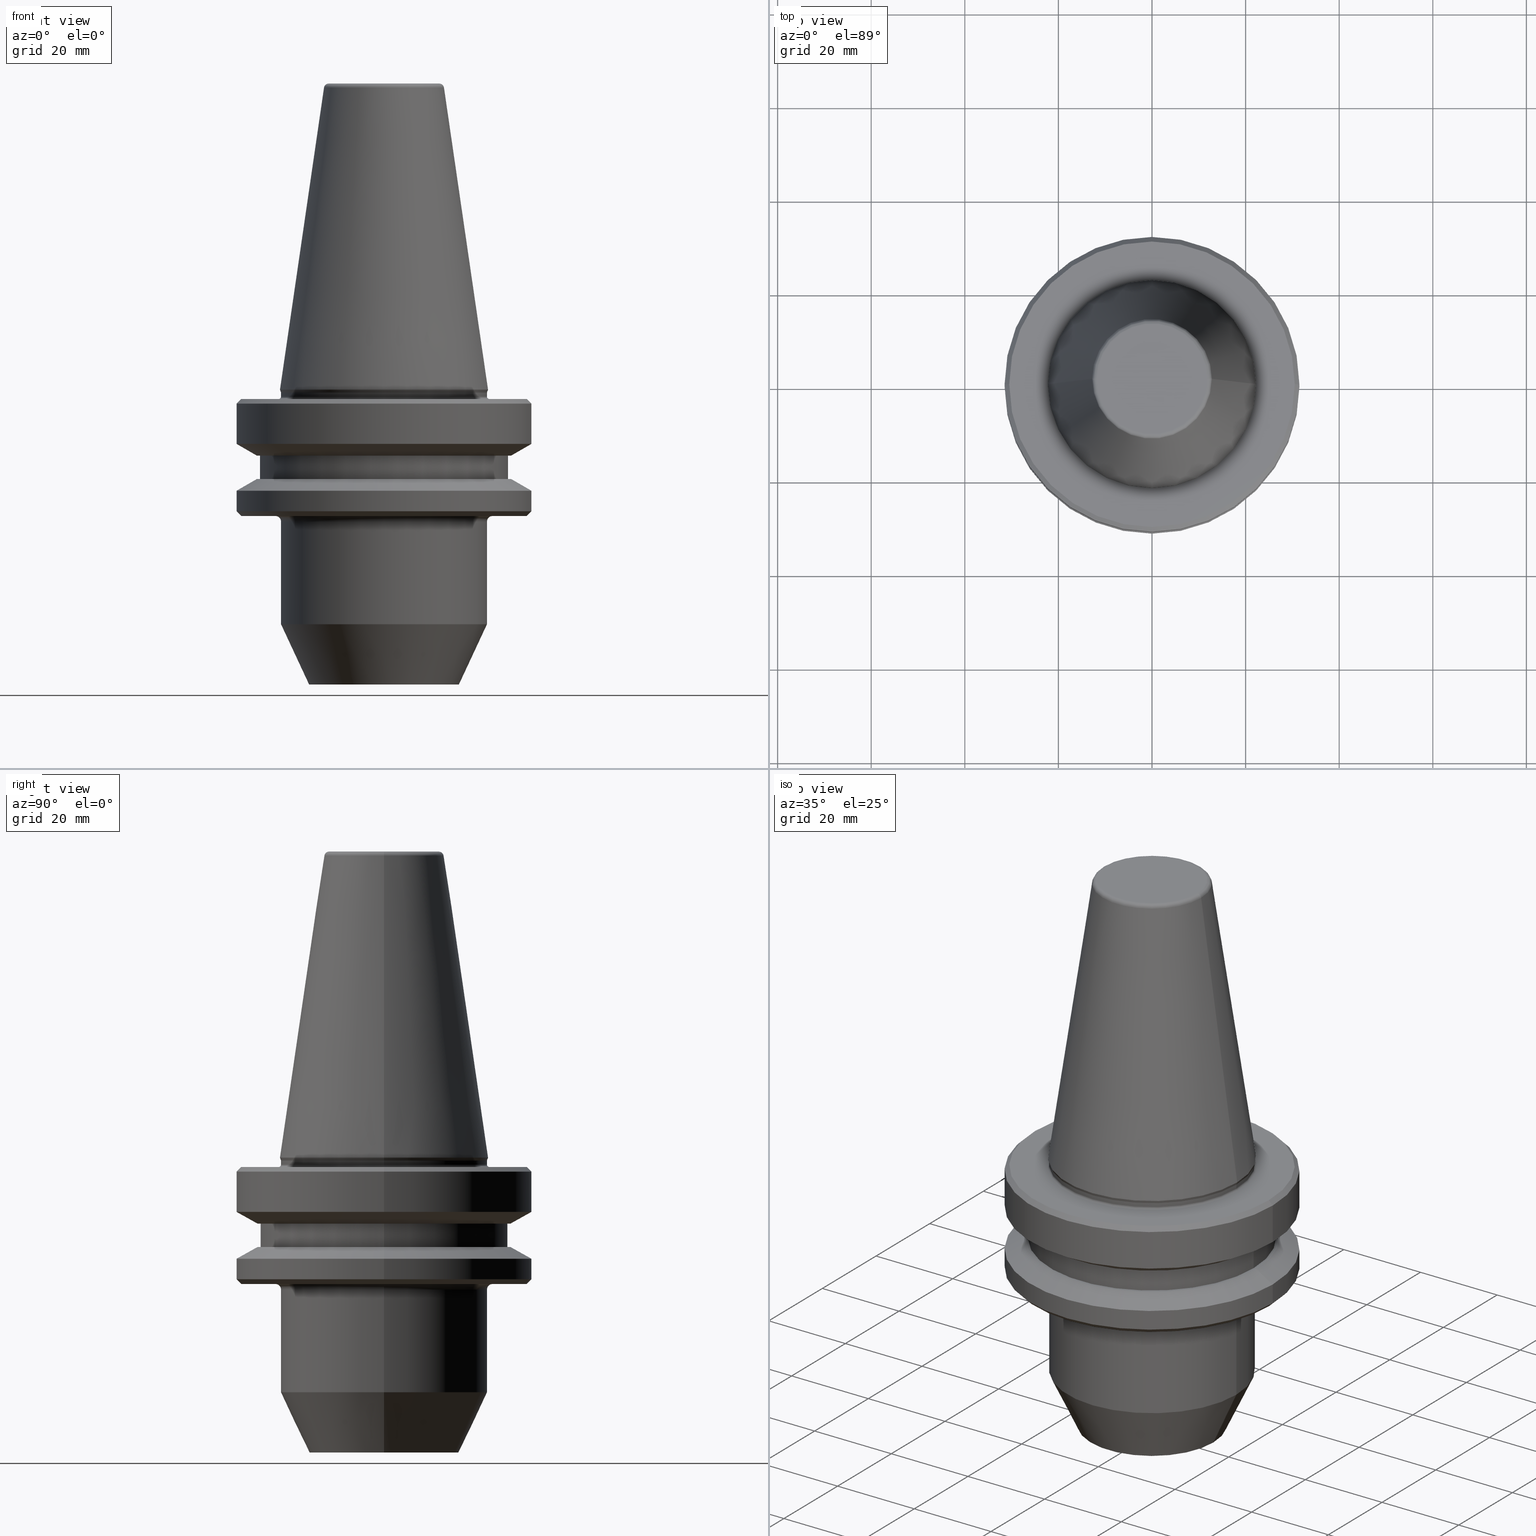
[diagram: canonical four-view strip — front | top / right | iso, engineering-drawing reading convention]
A machine part, canonical four-view strip (front | top / right | iso — engineering-drawing reading convention). The complete STEP part file that produces these views, byte-faithful:
ISO-10303-21;
HEADER;
FILE_DESCRIPTION (( 'STEP AP203' ),
    '1' );
FILE_NAME ('BT40 WE14 063 AD-6.3G15000 SL.STEP',
    '2019-05-22T08:40:05',
    ( '' ),
    ( '' ),
    'SwSTEP 2.0',
    'SolidWorks 2014',
    '' );
FILE_SCHEMA (( 'CONFIG_CONTROL_DESIGN' ));
ENDSEC;

DATA;
#1 = CARTESIAN_POINT ( 'NONE',  ( 0.0000000000000000000, 11.82266927716801800, 66.08871321166014900 ) ) ;
#2 = ORIENTED_EDGE ( 'NONE', *, *, #462, .T. ) ;
#3 = DIRECTION ( 'NONE',  ( -0.0000000000000000000, -0.0000000000000000000, 1.000000000000000000 ) ) ;
#4 = EDGE_CURVE ( 'NONE', #775, #307, #350, .T. ) ;
#5 = AXIS2_PLACEMENT_3D ( 'NONE', #273, #927, #460 ) ;
#6 = DIRECTION ( 'NONE',  ( 1.000000000000000000, 0.0000000000000000000, 0.0000000000000000000 ) ) ;
#7 = EDGE_CURVE ( 'NONE', #233, #418, #956, .T. ) ;
#8 = AXIS2_PLACEMENT_3D ( 'NONE', #815, #751, #198 ) ;
#9 = DIRECTION ( 'NONE',  ( -0.0000000000000000000, -0.0000000000000000000, 1.000000000000000000 ) ) ;
#10 = EDGE_LOOP ( 'NONE', ( #90, #641, #334, #752 ) ) ;
#11 = VERTEX_POINT ( 'NONE', #963 ) ;
#12 = VECTOR ( 'NONE', #986, 1000.000000000000000 ) ;
#13 = CARTESIAN_POINT ( 'NONE',  ( 0.0000000000000000000, 0.0000000000000000000, 0.1368080573304758500 ) ) ;
#14 = CONICAL_SURFACE ( 'NONE', #56, 27.16962701892278200, 1.047197551196600300 ) ;
#15 = DIRECTION ( 'NONE',  ( -0.0000000000000000000, -0.0000000000000000000, 1.000000000000000000 ) ) ;
#16 = EDGE_CURVE ( 'NONE', #940, #167, #313, .T. ) ;
#17 = DIRECTION ( 'NONE',  ( 1.000000000000000000, 0.0000000000000000000, 0.0000000000000000000 ) ) ;
#18 = EDGE_LOOP ( 'NONE', ( #39, #444 ) ) ;
#19 = CARTESIAN_POINT ( 'NONE',  ( 0.0000000000000000000, 0.0000000000000000000, -20.91142879476059900 ) ) ;
#20 = AXIS2_PLACEMENT_3D ( 'NONE', #386, #80, #906 ) ;
#21 = CARTESIAN_POINT ( 'NONE',  ( 22.00000000000000000, 0.0000000000000000000, -49.44424526528279500 ) ) ;
#22 = DIRECTION ( 'NONE',  ( -0.0000000000000000000, -0.0000000000000000000, 1.000000000000000000 ) ) ;
#23 = EDGE_CURVE ( 'NONE', #105, #840, #551, .T. ) ;
#24 = ORIENTED_EDGE ( 'NONE', *, *, #462, .F. ) ;
#25 = AXIS2_PLACEMENT_3D ( 'NONE', #756, #150, #961 ) ;
#26 = DIRECTION ( 'NONE',  ( -0.0000000000000000000, -0.0000000000000000000, 1.000000000000000000 ) ) ;
#27 = VERTEX_POINT ( 'NONE', #1029 ) ;
#28 = ORIENTED_EDGE ( 'NONE', *, *, #448, .F. ) ;
#29 = CIRCLE ( 'NONE', #280, 21.99999999999982600 ) ;
#30 = AXIS2_PLACEMENT_3D ( 'NONE', #112, #3, #464 ) ;
#31 = ORIENTED_EDGE ( 'NONE', *, *, #342, .F. ) ;
#32 = ORIENTED_EDGE ( 'NONE', *, *, #839, .T. ) ;
#33 = EDGE_CURVE ( 'NONE', #207, #50, #121, .T. ) ;
#34 = ORIENTED_EDGE ( 'NONE', *, *, #894, .T. ) ;
#35 = CARTESIAN_POINT ( 'NONE',  ( 0.0000000000000000000, 0.0000000000000000000, -2.311286788340083400 ) ) ;
#36 = AXIS2_PLACEMENT_3D ( 'NONE', #882, #989, #1000 ) ;
#37 = DIRECTION ( 'NONE',  ( 0.8660254037844400400, 1.060575238724908600E-016, -0.4999999999999976100 ) ) ;
#38 = AXIS2_PLACEMENT_3D ( 'NONE', #226, #1032, #158 ) ;
#39 = ORIENTED_EDGE ( 'NONE', *, *, #402, .T. ) ;
#40 = FACE_OUTER_BOUND ( 'NONE', #142, .T. ) ;
#41 = COORDINATED_UNIVERSAL_TIME_OFFSET ( 5, 30, .AHEAD. ) ;
#42 = FACE_OUTER_BOUND ( 'NONE', #378, .T. ) ;
#43 = ORIENTED_EDGE ( 'NONE', *, *, #971, .T. ) ;
#44 = CARTESIAN_POINT ( 'NONE',  ( -22.22499999999971700, 0.0000000000000000000, 0.6887132116596417200 ) ) ;
#45 = DIRECTION ( 'NONE',  ( 1.000000000000000000, 0.0000000000000000000, 0.0000000000000000000 ) ) ;
#46 = DIRECTION ( 'NONE',  ( -0.8660254037844398200, 1.060575238724908400E-016, 0.4999999999999977200 ) ) ;
#47 = CARTESIAN_POINT ( 'NONE',  ( 22.39999999999986400, 0.0000000000000000000, -5.551115123125782700E-014 ) ) ;
#48 = DIRECTION ( 'NONE',  ( -0.0000000000000000000, -0.0000000000000000000, 1.000000000000000000 ) ) ;
#49 = CARTESIAN_POINT ( 'NONE',  ( 22.49999999999985400, 0.0000000000000000000, -0.8112867883400820500 ) ) ;
#50 = VERTEX_POINT ( 'NONE', #978 ) ;
#51 = LINE ( 'NONE', #758, #877 ) ;
#52 = CONICAL_SURFACE ( 'NONE', #767, 27.16962701892278200, 1.047197551196600300 ) ;
#53 = EDGE_CURVE ( 'NONE', #50, #535, #521, .T. ) ;
#54 = ORIENTED_EDGE ( 'NONE', *, *, #16, .T. ) ;
#55 = DIRECTION ( 'NONE',  ( 1.000000000000000000, 0.0000000000000000000, 0.0000000000000000000 ) ) ;
#56 = AXIS2_PLACEMENT_3D ( 'NONE', #918, #744, #512 ) ;
#57 = CARTESIAN_POINT ( 'NONE',  ( 0.0000000000000000000, 0.0000000000000000000, -26.31128678844368800 ) ) ;
#58 = DIRECTION ( 'NONE',  ( 1.000000000000000000, 0.0000000000000000000, 0.0000000000000000000 ) ) ;
#59 = DIRECTION ( 'NONE',  ( -0.0000000000000000000, -0.0000000000000000000, 1.000000000000000000 ) ) ;
#60 = AXIS2_PLACEMENT_3D ( 'NONE', #714, #577, #1010 ) ;
#61 = ADVANCED_FACE ( 'NONE', ( #932, #720 ), #499, .F. ) ;
#62 = VERTEX_POINT ( 'NONE', #432 ) ;
#63 = VERTEX_POINT ( 'NONE', #559 ) ;
#64 = APPROVAL_ROLE ( '' ) ;
#65 = AXIS2_PLACEMENT_3D ( 'NONE', #306, #183, #404 ) ;
#66 = CYLINDRICAL_SURFACE ( 'NONE', #143, 26.50000000000007800 ) ;
#67 = ORIENTED_EDGE ( 'NONE', *, *, #348, .F. ) ;
#68 = ORIENTED_EDGE ( 'NONE', *, *, #247, .T. ) ;
#69 = LOCAL_TIME ( 14, 10, 5.000000000000000000, #284 ) ;
#70 = VECTOR ( 'NONE', #487, 1000.000000000000000 ) ;
#71 = CC_DESIGN_PERSON_AND_ORGANIZATION_ASSIGNMENT ( #377, #486, ( #950 ) ) ;
#72 = AXIS2_PLACEMENT_3D ( 'NONE', #123, #694, #209 ) ;
#73 = DIRECTION ( 'NONE',  ( -0.0000000000000000000, -0.0000000000000000000, 1.000000000000000000 ) ) ;
#74 = AXIS2_PLACEMENT_3D ( 'NONE', #463, #1008, #550 ) ;
#75 = AXIS2_PLACEMENT_3D ( 'NONE', #1051, #831, #258 ) ;
#76 = AXIS2_PLACEMENT_3D ( 'NONE', #899, #842, #844 ) ;
#77 = CARTESIAN_POINT ( 'NONE',  ( -16.00000000000000000, 1.959434878635765100E-015, -62.31128678834036100 ) ) ;
#78 = DIRECTION ( 'NONE',  ( 1.000000000000000000, 0.0000000000000000000, 0.0000000000000000000 ) ) ;
#79 = ORIENTED_EDGE ( 'NONE', *, *, #369, .F. ) ;
#80 = DIRECTION ( 'NONE',  ( -0.0000000000000000000, -0.0000000000000000000, 1.000000000000000000 ) ) ;
#81 = CIRCLE ( 'NONE', #20, 27.16962701892167300 ) ;
#82 = APPROVAL ( #316, 'UNSPECIFIED' ) ;
#83 = DIRECTION ( 'NONE',  ( 1.000000000000000000, 0.0000000000000000000, 0.0000000000000000000 ) ) ;
#84 = CIRCLE ( 'NONE', #322, 22.49999999999985400 ) ;
#85 = AXIS2_PLACEMENT_3D ( 'NONE', #271, #915, #997 ) ;
#86 = FACE_OUTER_BOUND ( 'NONE', #457, .T. ) ;
#87 = ORIENTED_EDGE ( 'NONE', *, *, #705, .T. ) ;
#88 = CARTESIAN_POINT ( 'NONE',  ( 0.0000000000000000000, 0.0000000000000000000, 82.74845858742440900 ) ) ;
#89 = AXIS2_PLACEMENT_3D ( 'NONE', #19, #188, #452 ) ;
#90 = ORIENTED_EDGE ( 'NONE', *, *, #970, .T. ) ;
#91 = CARTESIAN_POINT ( 'NONE',  ( 0.0000000000000000000, 0.0000000000000000000, 82.74845858742440900 ) ) ;
#92 = AXIS2_PLACEMENT_3D ( 'NONE', #400, #522, #533 ) ;
#93 = AXIS2_PLACEMENT_3D ( 'NONE', #743, #676, #250 ) ;
#94 = AXIS2_PLACEMENT_3D ( 'NONE', #268, #826, #678 ) ;
#95 = CIRCLE ( 'NONE', #176, 11.82266927716801800 ) ;
#96 = APPROVAL_DATE_TIME ( #312, #451 ) ;
#97 = EDGE_CURVE ( 'NONE', #545, #157, #698, .T. ) ;
#98 = VECTOR ( 'NONE', #1048, 1000.000000000000000 ) ;
#99 = AXIS2_PLACEMENT_3D ( 'NONE', #279, #993, #914 ) ;
#100 = DIRECTION ( 'NONE',  ( 1.000000000000000000, 0.0000000000000000000, 0.0000000000000000000 ) ) ;
#101 = AXIS2_PLACEMENT_3D ( 'NONE', #608, #15, #193 ) ;
#102 = AXIS2_PLACEMENT_3D ( 'NONE', #735, #242, #817 ) ;
#103 = VERTEX_POINT ( 'NONE', #288 ) ;
#104 = AXIS2_PLACEMENT_3D ( 'NONE', #516, #803, #147 ) ;
#105 = VERTEX_POINT ( 'NONE', #428 ) ;
#106 = VECTOR ( 'NONE', #26, 1000.000000000000000 ) ;
#107 = ORIENTED_EDGE ( 'NONE', *, *, #898, .F. ) ;
#108 = FACE_OUTER_BOUND ( 'NONE', #571, .T. ) ;
#109 = CIRCLE ( 'NONE', #995, 21.99999999999979700 ) ;
#110 = CARTESIAN_POINT ( 'NONE',  ( -22.39999999999986400, 2.743208830090054500E-015, -5.551115123125782700E-014 ) ) ;
#111 = PRODUCT_RELATED_PRODUCT_CATEGORY ( 'detail', '', ( #675 ) ) ;
#112 = CARTESIAN_POINT ( 'NONE',  ( 0.0000000000000000000, 0.0000000000000000000, -18.41128678844344800 ) ) ;
#113 = CARTESIAN_POINT ( 'NONE',  ( -21.99999999999981200, 2.694222958124154300E-015, 82.74845858742440900 ) ) ;
#114 = AXIS2_PLACEMENT_3D ( 'NONE', #1042, #567, #45 ) ;
#115 = DIRECTION ( 'NONE',  ( -0.0000000000000000000, -0.0000000000000000000, 1.000000000000000000 ) ) ;
#116 = DIRECTION ( 'NONE',  ( 1.000000000000000000, 0.0000000000000000000, 0.0000000000000000000 ) ) ;
#117 = DIRECTION ( 'NONE',  ( 1.000000000000000000, 0.0000000000000000000, 0.0000000000000000000 ) ) ;
#118 = FACE_OUTER_BOUND ( 'NONE', #10, .T. ) ;
#119 = AXIS2_PLACEMENT_3D ( 'NONE', #713, #165, #6 ) ;
#120 = APPROVAL_PERSON_ORGANIZATION ( #349, #451, #64 ) ;
#121 = CIRCLE ( 'NONE', #547, 12.81220206925715000 ) ;
#122 = ORIENTED_EDGE ( 'NONE', *, *, #860, .T. ) ;
#123 = CARTESIAN_POINT ( 'NONE',  ( 0.0000000000000000000, 0.0000000000000000000, -25.31128678844346400 ) ) ;
#124 = AXIS2_PLACEMENT_3D ( 'NONE', #820, #876, #1035 ) ;
#125 = ORIENTED_EDGE ( 'NONE', *, *, #129, .T. ) ;
#126 = DIRECTION ( 'NONE',  ( -0.0000000000000000000, -0.0000000000000000000, 1.000000000000000000 ) ) ;
#127 = DIRECTION ( 'NONE',  ( -0.1443081888881784800, 0.0000000000000000000, -0.9895327920891828800 ) ) ;
#128 = DIRECTION ( 'NONE',  ( 1.224646799147353200E-016, 1.000000000000000000, 0.0000000000000000000 ) ) ;
#129 = EDGE_CURVE ( 'NONE', #418, #543, #911, .T. ) ;
#130 = VERTEX_POINT ( 'NONE', #436 ) ;
#131 = CARTESIAN_POINT ( 'NONE',  ( 22.02412295168547700, 0.0000000000000000000, 0.1368080573304758500 ) ) ;
#132 = CIRCLE ( 'NONE', #65, 27.16962701892278200 ) ;
#133 = CC_DESIGN_APPROVAL ( #82, ( #156 ) ) ;
#134 = ORIENTED_EDGE ( 'NONE', *, *, #904, .T. ) ;
#135 = CARTESIAN_POINT ( 'NONE',  ( 22.22499999999971700, 2.721777511104957700E-015, 0.6887132116596417200 ) ) ;
#136 = CIRCLE ( 'NONE', #496, 0.5000000000000282000 ) ;
#137 = TOROIDAL_SURFACE ( 'NONE', #766, 22.39999999999986400, 0.4000000000001126500 ) ;
#138 = DIRECTION ( 'NONE',  ( 0.3420201433261634300, 0.0000000000000000000, 0.9396926207857283500 ) ) ;
#139 = ORIENTED_EDGE ( 'NONE', *, *, #264, .F. ) ;
#140 = ORIENTED_EDGE ( 'NONE', *, *, #1046, .T. ) ;
#141 = CARTESIAN_POINT ( 'NONE',  ( 0.0000000000000000000, 0.0000000000000000000, -5.551115123125782700E-014 ) ) ;
#142 = EDGE_LOOP ( 'NONE', ( #87, #933, #574, #790 ) ) ;
#143 = AXIS2_PLACEMENT_3D ( 'NONE', #144, #885, #159 ) ;
#144 = CARTESIAN_POINT ( 'NONE',  ( 0.0000000000000000000, 0.0000000000000000000, 82.74845858742440900 ) ) ;
#145 = AXIS2_PLACEMENT_3D ( 'NONE', #563, #893, #642 ) ;
#146 = EDGE_CURVE ( 'NONE', #535, #27, #285, .T. ) ;
#147 = DIRECTION ( 'NONE',  ( 1.000000000000000000, 0.0000000000000000000, 0.0000000000000000000 ) ) ;
#148 = DIRECTION ( 'NONE',  ( 1.000000000000000000, 0.0000000000000000000, 0.0000000000000000000 ) ) ;
#149 = ORIENTED_EDGE ( 'NONE', *, *, #851, .T. ) ;
#150 = DIRECTION ( 'NONE',  ( 1.224646799147353200E-016, 1.000000000000000000, 0.0000000000000000000 ) ) ;
#151 = CIRCLE ( 'NONE', #184, 0.4000000000001126500 ) ;
#152 = ORIENTED_EDGE ( 'NONE', *, *, #236, .T. ) ;
#153 = COORDINATED_UNIVERSAL_TIME_OFFSET ( 5, 30, .AHEAD. ) ;
#154 = ORIENTED_EDGE ( 'NONE', *, *, #7, .T. ) ;
#155 = ADVANCED_FACE ( 'NONE', ( #42 ), #14, .T. ) ;
#156 = SECURITY_CLASSIFICATION ( '', '', #721 ) ;
#157 = VERTEX_POINT ( 'NONE', #690 ) ;
#158 = DIRECTION ( 'NONE',  ( 1.000000000000000000, 0.0000000000000000000, 0.0000000000000000000 ) ) ;
#159 = DIRECTION ( 'NONE',  ( 1.000000000000000000, 0.0000000000000000000, 0.0000000000000000000 ) ) ;
#160 = EDGE_LOOP ( 'NONE', ( #507, #664, #902, #671 ) ) ;
#161 = CC_DESIGN_PERSON_AND_ORGANIZATION_ASSIGNMENT ( #719, #162, ( #414 ) ) ;
#162 = PERSON_AND_ORGANIZATION_ROLE ( 'design_supplier' ) ;
#163 = DIRECTION ( 'NONE',  ( 1.000000000000000000, 0.0000000000000000000, 0.0000000000000000000 ) ) ;
#164 = AXIS2_PLACEMENT_3D ( 'NONE', #652, #73, #891 ) ;
#165 = DIRECTION ( 'NONE',  ( -0.0000000000000000000, -0.0000000000000000000, 1.000000000000000000 ) ) ;
#166 = AXIS2_PLACEMENT_3D ( 'NONE', #57, #648, #148 ) ;
#167 = VERTEX_POINT ( 'NONE', #323 ) ;
#168 = CIRCLE ( 'NONE', #5, 22.00000000000000000 ) ;
#169 = CONICAL_SURFACE ( 'NONE', #511, 22.22499999999971700, 0.1448138077623186700 ) ;
#170 = AXIS2_PLACEMENT_3D ( 'NONE', #480, #1025, #650 ) ;
#171 = VECTOR ( 'NONE', #399, 1000.000000000000000 ) ;
#172 = AXIS2_PLACEMENT_3D ( 'NONE', #91, #947, #472 ) ;
#173 = ORIENTED_EDGE ( 'NONE', *, *, #348, .T. ) ;
#174 = AXIS2_PLACEMENT_3D ( 'NONE', #948, #565, #878 ) ;
#175 = CARTESIAN_POINT ( 'NONE',  ( 22.02412295168547700, 0.0000000000000000000, 0.1368080573304758500 ) ) ;
#176 = AXIS2_PLACEMENT_3D ( 'NONE', #501, #958, #235 ) ;
#177 = ORIENTED_EDGE ( 'NONE', *, *, #4, .T. ) ;
#178 = VERTEX_POINT ( 'NONE', #1024 ) ;
#179 = VECTOR ( 'NONE', #295, 1000.000000000000100 ) ;
#180 = CYLINDRICAL_SURFACE ( 'NONE', #254, 22.00000000000000000 ) ;
#181 = AXIS2_PLACEMENT_3D ( 'NONE', #1045, #407, #777 ) ;
#182 = LOCAL_TIME ( 14, 10, 5.000000000000000000, #411 ) ;
#183 = DIRECTION ( 'NONE',  ( -0.0000000000000000000, -0.0000000000000000000, 1.000000000000000000 ) ) ;
#184 = AXIS2_PLACEMENT_3D ( 'NONE', #47, #1053, #216 ) ;
#185 = ORIENTED_EDGE ( 'NONE', *, *, #23, .T. ) ;
#186 = CARTESIAN_POINT ( 'NONE',  ( 0.0000000000000000000, 0.0000000000000000000, -2.311286788340083400 ) ) ;
#187 = EDGE_CURVE ( 'NONE', #594, #810, #267, .T. ) ;
#188 = DIRECTION ( 'NONE',  ( -0.0000000000000000000, -0.0000000000000000000, 1.000000000000000000 ) ) ;
#189 = CC_DESIGN_DATE_AND_TIME_ASSIGNMENT ( #575, #1038, ( #950 ) ) ;
#190 = ORIENTED_EDGE ( 'NONE', *, *, #187, .F. ) ;
#191 = VERTEX_POINT ( 'NONE', #218 ) ;
#192 = CIRCLE ( 'NONE', #89, 31.50000000000019500 ) ;
#193 = DIRECTION ( 'NONE',  ( 1.000000000000000000, 0.0000000000000000000, 0.0000000000000000000 ) ) ;
#194 = ORIENTED_EDGE ( 'NONE', *, *, #868, .T. ) ;
#195 = CIRCLE ( 'NONE', #471, 27.16962701892278200 ) ;
#196 = CARTESIAN_POINT ( 'NONE',  ( 0.0000000000000000000, 0.0000000000000000000, 82.74845858742440900 ) ) ;
#197 = CARTESIAN_POINT ( 'NONE',  ( 0.0000000000000000000, 0.0000000000000000000, 66.08871321166032000 ) ) ;
#198 = DIRECTION ( 'NONE',  ( 1.000000000000000000, 0.0000000000000000000, 0.0000000000000000000 ) ) ;
#199 = DIRECTION ( 'NONE',  ( -0.0000000000000000000, -0.0000000000000000000, 1.000000000000000000 ) ) ;
#200 = DIRECTION ( 'NONE',  ( 0.7071067811865474600, 8.659560562354931600E-017, -0.7071067811865475700 ) ) ;
#201 = LINE ( 'NONE', #223, #179 ) ;
#202 = DIRECTION ( 'NONE',  ( -0.0000000000000000000, -0.0000000000000000000, 1.000000000000000000 ) ) ;
#203 = FACE_OUTER_BOUND ( 'NONE', #683, .T. ) ;
#204 = ORGANIZATION ( 'UNSPECIFIED', 'UNSPECIFIED', '' ) ;
#205 = DIRECTION ( 'NONE',  ( 1.000000000000000000, 0.0000000000000000000, 0.0000000000000000000 ) ) ;
#206 = DIRECTION ( 'NONE',  ( -0.0000000000000000000, -0.0000000000000000000, 1.000000000000000000 ) ) ;
#207 = VERTEX_POINT ( 'NONE', #725 ) ;
#208 = UNCERTAINTY_MEASURE_WITH_UNIT (LENGTH_MEASURE( 1.000000000000000100E-005 ), #412, 'distance_accuracy_value', 'NONE');
#209 = DIRECTION ( 'NONE',  ( 1.000000000000000000, 0.0000000000000000000, 0.0000000000000000000 ) ) ;
#210 = AXIS2_PLACEMENT_3D ( 'NONE', #186, #59, #788 ) ;
#211 = CIRCLE ( 'NONE', #92, 26.50000000000007800 ) ;
#212 = ORIENTED_EDGE ( 'NONE', *, *, #849, .F. ) ;
#213 = CIRCLE ( 'NONE', #454, 16.00000000000000000 ) ;
#214 = ADVANCED_FACE ( 'NONE', ( #861, #470 ), #380, .F. ) ;
#215 = DIRECTION ( 'NONE',  ( -0.0000000000000000000, -0.0000000000000000000, 1.000000000000000000 ) ) ;
#216 = DIRECTION ( 'NONE',  ( 0.0000000000000000000, 0.0000000000000000000, -1.000000000000000000 ) ) ;
#217 = ADVANCED_FACE ( 'NONE', ( #493 ), #1044, .T. ) ;
#218 = CARTESIAN_POINT ( 'NONE',  ( 31.49999999999986100, 0.0000000000000000000, -2.311286788340083400 ) ) ;
#219 = CARTESIAN_POINT ( 'NONE',  ( 0.0000000000000000000, 0.0000000000000000000, -5.551115123125782700E-014 ) ) ;
#220 = CARTESIAN_POINT ( 'NONE',  ( 27.16962701892278200, 0.0000000000000000000, -13.41128678834002700 ) ) ;
#221 = ORIENTED_EDGE ( 'NONE', *, *, #705, .F. ) ;
#222 = FACE_OUTER_BOUND ( 'NONE', #789, .T. ) ;
#223 = CARTESIAN_POINT ( 'NONE',  ( 27.16962701892278200, 0.0000000000000000000, -13.41128678834002700 ) ) ;
#224 = ORIENTED_EDGE ( 'NONE', *, *, #845, .T. ) ;
#225 = VERTEX_POINT ( 'NONE', #405 ) ;
#226 = CARTESIAN_POINT ( 'NONE',  ( 0.0000000000000000000, 0.0000000000000000000, 0.0000000000000000000 ) ) ;
#227 = CARTESIAN_POINT ( 'NONE',  ( -26.50000000000007800, 3.245314017740495600E-015, -13.41128678834002700 ) ) ;
#228 = ORIENTED_EDGE ( 'NONE', *, *, #526, .F. ) ;
#229 = ADVANCED_FACE ( 'NONE', ( #239 ), #636, .T. ) ;
#230 = MECHANICAL_CONTEXT ( 'NONE', #572, 'mechanical' ) ;
#231 = CARTESIAN_POINT ( 'NONE',  ( 11.82266927716790800, 0.0000000000000000000, 65.08871321166032000 ) ) ;
#232 = PERSON_AND_ORGANIZATION_ROLE ( 'classification_officer' ) ;
#233 = VERTEX_POINT ( 'NONE', #1036 ) ;
#234 = ORIENTED_EDGE ( 'NONE', *, *, #517, .F. ) ;
#235 = DIRECTION ( 'NONE',  ( 1.000000000000000000, 0.0000000000000000000, 0.0000000000000000000 ) ) ;
#236 = EDGE_CURVE ( 'NONE', #105, #233, #213, .T. ) ;
#237 = CONICAL_SURFACE ( 'NONE', #124, 30.49999999999997200, 0.7853981633974482800 ) ;
#238 = APPROVAL_DATE_TIME ( #469, #82 ) ;
#239 = FACE_OUTER_BOUND ( 'NONE', #666, .T. ) ;
#240 = EDGE_LOOP ( 'NONE', ( #234, #834, #246, #31 ) ) ;
#241 = ADVANCED_FACE ( 'NONE', ( #838 ), #1017, .T. ) ;
#242 = DIRECTION ( 'NONE',  ( -0.0000000000000000000, -0.0000000000000000000, 1.000000000000000000 ) ) ;
#243 = EDGE_LOOP ( 'NONE', ( #665, #895 ) ) ;
#244 = AXIS2_PLACEMENT_3D ( 'NONE', #321, #812, #1039 ) ;
#245 = DIRECTION ( 'NONE',  ( 1.000000000000000000, 0.0000000000000000000, 0.0000000000000000000 ) ) ;
#246 = ORIENTED_EDGE ( 'NONE', *, *, #97, .T. ) ;
#247 = EDGE_CURVE ( 'NONE', #338, #760, #195, .T. ) ;
#248 = CARTESIAN_POINT ( 'NONE',  ( 0.0000000000000000000, 0.0000000000000000000, -20.91142879476059900 ) ) ;
#249 = FACE_OUTER_BOUND ( 'NONE', #645, .T. ) ;
#250 = DIRECTION ( 'NONE',  ( -1.000000000000000000, 0.0000000000000000000, 0.0000000000000000000 ) ) ;
#251 = AXIS2_PLACEMENT_3D ( 'NONE', #389, #859, #205 ) ;
#252 = EDGE_LOOP ( 'NONE', ( #670, #816 ) ) ;
#253 = ORIENTED_EDGE ( 'NONE', *, *, #944, .T. ) ;
#254 = AXIS2_PLACEMENT_3D ( 'NONE', #88, #736, #352 ) ;
#255 = CARTESIAN_POINT ( 'NONE',  ( -31.49999999999986100, 3.857637417314145300E-015, 82.74845858742440900 ) ) ;
#256 = EDGE_CURVE ( 'NONE', #982, #103, #425, .T. ) ;
#257 = ADVANCED_FACE ( 'NONE', ( #655 ), #169, .T. ) ;
#258 = DIRECTION ( 'NONE',  ( 0.0000000000000000000, 0.0000000000000000000, -1.000000000000000000 ) ) ;
#259 = EDGE_LOOP ( 'NONE', ( #706, #1022, #640, #617 ) ) ;
#260 = AXIS2_PLACEMENT_3D ( 'NONE', #727, #128, #347 ) ;
#261 = ORIENTED_EDGE ( 'NONE', *, *, #856, .T. ) ;
#262 = ORIENTED_EDGE ( 'NONE', *, *, #925, .F. ) ;
#263 = CYLINDRICAL_SURFACE ( 'NONE', #99, 31.50000000000019500 ) ;
#264 = EDGE_CURVE ( 'NONE', #764, #537, #612, .T. ) ;
#265 = ORIENTED_EDGE ( 'NONE', *, *, #843, .T. ) ;
#266 = APPROVAL_PERSON_ORGANIZATION ( #492, #82, #886 ) ;
#267 = CIRCLE ( 'NONE', #475, 23.19999999999999900 ) ;
#268 = CARTESIAN_POINT ( 'NONE',  ( 0.0000000000000000000, 0.0000000000000000000, 82.74845858742440900 ) ) ;
#269 = DIRECTION ( 'NONE',  ( 0.0000000000000000000, -1.000000000000000000, 0.0000000000000000000 ) ) ;
#270 = ORIENTED_EDGE ( 'NONE', *, *, #879, .T. ) ;
#271 = CARTESIAN_POINT ( 'NONE',  ( 0.0000000000000000000, 0.0000000000000000000, 82.74845858742440900 ) ) ;
#272 = LINE ( 'NONE', #435, #308 ) ;
#273 = CARTESIAN_POINT ( 'NONE',  ( 0.0000000000000000000, 0.0000000000000000000, -49.44424526528279500 ) ) ;
#274 = VECTOR ( 'NONE', #786, 1000.000000000000000 ) ;
#275 = CIRCLE ( 'NONE', #787, 21.99999999999982600 ) ;
#276 = AXIS2_PLACEMENT_3D ( 'NONE', #1002, #199, #445 ) ;
#277 = VERTEX_POINT ( 'NONE', #544 ) ;
#278 = EDGE_CURVE ( 'NONE', #800, #63, #890, .T. ) ;
#279 = CARTESIAN_POINT ( 'NONE',  ( 0.0000000000000000000, 0.0000000000000000000, 82.74845858742440900 ) ) ;
#280 = AXIS2_PLACEMENT_3D ( 'NONE', #733, #661, #687 ) ;
#281 = DIRECTION ( 'NONE',  ( -0.0000000000000000000, -0.0000000000000000000, 1.000000000000000000 ) ) ;
#282 = EDGE_CURVE ( 'NONE', #345, #178, #394, .T. ) ;
#283 = CIRCLE ( 'NONE', #164, 30.49999999999997200 ) ;
#284 = COORDINATED_UNIVERSAL_TIME_OFFSET ( 5, 30, .AHEAD. ) ;
#285 = CIRCLE ( 'NONE', #298, 11.82266927716801800 ) ;
#286 = AXIS2_PLACEMENT_3D ( 'NONE', #248, #202, #426 ) ;
#287 = DIRECTION ( 'NONE',  ( 0.4226182617406936100, 0.0000000000000000000, 0.9063077870366526000 ) ) ;
#288 = CARTESIAN_POINT ( 'NONE',  ( 27.16962701892167300, 3.592478546794586600E-015, -18.41128678844344800 ) ) ;
#289 = AXIS2_PLACEMENT_3D ( 'NONE', #196, #290, #100 ) ;
#290 = DIRECTION ( 'NONE',  ( -0.0000000000000000000, -0.0000000000000000000, 1.000000000000000000 ) ) ;
#291 = AXIS2_PLACEMENT_3D ( 'NONE', #529, #976, #593 ) ;
#292 = CARTESIAN_POINT ( 'NONE',  ( -31.49999999999986100, 0.0000000000000000000, -2.311286788340083400 ) ) ;
#293 = ORIENTED_EDGE ( 'NONE', *, *, #16, .F. ) ;
#294 = CIRCLE ( 'NONE', #30, 26.50000000000007800 ) ;
#295 = DIRECTION ( 'NONE',  ( 0.8660254037844398200, 0.0000000000000000000, 0.4999999999999977200 ) ) ;
#296 = FACE_OUTER_BOUND ( 'NONE', #805, .T. ) ;
#297 = CIRCLE ( 'NONE', #166, 30.49999999999997200 ) ;
#298 = AXIS2_PLACEMENT_3D ( 'NONE', #197, #928, #422 ) ;
#299 = DIRECTION ( 'NONE',  ( 1.000000000000000000, 0.0000000000000000000, 0.0000000000000000000 ) ) ;
#300 = DIRECTION ( 'NONE',  ( -0.0000000000000000000, -0.0000000000000000000, 1.000000000000000000 ) ) ;
#301 = ADVANCED_FACE ( 'NONE', ( #449 ), #994, .F. ) ;
#302 = CARTESIAN_POINT ( 'NONE',  ( -22.00000000000000000, 2.694222958124176800E-015, -27.51128678844369400 ) ) ;
#303 = EDGE_LOOP ( 'NONE', ( #28, #466, #381, #692 ) ) ;
#304 = DIRECTION ( 'NONE',  ( -0.0000000000000000000, -0.0000000000000000000, 1.000000000000000000 ) ) ;
#305 = AXIS2_PLACEMENT_3D ( 'NONE', #1001, #660, #633 ) ;
#306 = CARTESIAN_POINT ( 'NONE',  ( 0.0000000000000000000, 0.0000000000000000000, -13.41128678834002700 ) ) ;
#307 = VERTEX_POINT ( 'NONE', #913 ) ;
#308 = VECTOR ( 'NONE', #903, 1000.000000000000000 ) ;
#309 = AXIS2_PLACEMENT_3D ( 'NONE', #668, #406, #58 ) ;
#310 = APPLICATION_CONTEXT ( 'configuration controlled 3d designs of mechanical parts and assemblies' ) ;
#311 = VECTOR ( 'NONE', #598, 1000.000000000000000 ) ;
#312 = DATE_AND_TIME ( #549, #739 ) ;
#313 = LINE ( 'NONE', #862, #98 ) ;
#314 = CARTESIAN_POINT ( 'NONE',  ( -21.99999999999982600, 2.724839128102840900E-015, -0.8112867883400820500 ) ) ;
#315 = ORIENTED_EDGE ( 'NONE', *, *, #973, .T. ) ;
#316 = APPROVAL_STATUS ( 'not_yet_approved' ) ;
#317 = DIRECTION ( 'NONE',  ( 1.000000000000000000, 0.0000000000000000000, 0.0000000000000000000 ) ) ;
#318 = AXIS2_PLACEMENT_3D ( 'NONE', #704, #215, #772 ) ;
#319 = ADVANCED_FACE ( 'NONE', ( #674 ), #588, .T. ) ;
#320 = CARTESIAN_POINT ( 'NONE',  ( 0.0000000000000000000, 0.0000000000000000000, -26.31128678844368800 ) ) ;
#321 = CARTESIAN_POINT ( 'NONE',  ( 0.0000000000000000000, 0.0000000000000000000, -5.551115123125782700E-014 ) ) ;
#322 = AXIS2_PLACEMENT_3D ( 'NONE', #682, #669, #17 ) ;
#323 = CARTESIAN_POINT ( 'NONE',  ( -31.50000000000019500, 3.857637417314186400E-015, -20.91142879476059900 ) ) ;
#324 = CARTESIAN_POINT ( 'NONE',  ( 22.22499999999971700, 0.0000000000000000000, 0.6887132116596417200 ) ) ;
#325 = AXIS2_PLACEMENT_3D ( 'NONE', #988, #115, #83 ) ;
#326 = LINE ( 'NONE', #175, #917 ) ;
#327 = DIRECTION ( 'NONE',  ( 1.000000000000000000, 0.0000000000000000000, 0.0000000000000000000 ) ) ;
#328 = ORIENTED_EDGE ( 'NONE', *, *, #900, .F. ) ;
#329 = TOROIDAL_SURFACE ( 'NONE', #354, 23.19999999999999900, 1.199999999999998000 ) ;
#330 = VERTEX_POINT ( 'NONE', #227 ) ;
#331 = DIRECTION ( 'NONE',  ( -1.000000000000000000, 1.224646799147353900E-016, 0.0000000000000000000 ) ) ;
#332 = CONICAL_SURFACE ( 'NONE', #596, 31.49999999999986100, 0.7853981633974482800 ) ;
#333 = ORIENTED_EDGE ( 'NONE', *, *, #1049, .T. ) ;
#334 = ORIENTED_EDGE ( 'NONE', *, *, #580, .F. ) ;
#335 = AXIS2_PLACEMENT_3D ( 'NONE', #1, #582, #887 ) ;
#336 = ORIENTED_EDGE ( 'NONE', *, *, #987, .T. ) ;
#337 = CARTESIAN_POINT ( 'NONE',  ( 0.0000000000000000000, 0.0000000000000000000, -62.31128678834036100 ) ) ;
#338 = VERTEX_POINT ( 'NONE', #542 ) ;
#339 = DIRECTION ( 'NONE',  ( -0.0000000000000000000, -0.0000000000000000000, 1.000000000000000000 ) ) ;
#340 = AXIS2_PLACEMENT_3D ( 'NONE', #320, #300, #327 ) ;
#341 = DIRECTION ( 'NONE',  ( 1.000000000000000000, 0.0000000000000000000, 0.0000000000000000000 ) ) ;
#342 = EDGE_CURVE ( 'NONE', #892, #157, #136, .T. ) ;
#343 = DIRECTION ( 'NONE',  ( 0.0000000000000000000, 0.0000000000000000000, -1.000000000000000000 ) ) ;
#344 = CLOSED_SHELL ( 'NONE', ( #257, #776, #597, #552, #734, #217, #658, #155, #688, #814, #638, #741, #388, #554, #241, #419, #319, #392, #726, #502, #415, #301, #61, #967, #768, #229, #214, #825, #615, #1013, #629, #975, #1037, #494, #771, #1012, #1027, #528 ) ) ;
#345 = VERTEX_POINT ( 'NONE', #131 ) ;
#346 = LINE ( 'NONE', #799, #311 ) ;
#347 = DIRECTION ( 'NONE',  ( -1.000000000000000000, 1.224646799147350200E-016, 0.0000000000000000000 ) ) ;
#348 = EDGE_CURVE ( 'NONE', #178, #345, #360, .T. ) ;
#349 = PERSON_AND_ORGANIZATION ( #926, #204 ) ;
#350 = CIRCLE ( 'NONE', #434, 21.99999999999979700 ) ;
#351 = CARTESIAN_POINT ( 'NONE',  ( 0.0000000000000000000, 0.0000000000000000000, 0.1368080573304758500 ) ) ;
#352 = DIRECTION ( 'NONE',  ( 1.000000000000000000, 0.0000000000000000000, 0.0000000000000000000 ) ) ;
#353 = CARTESIAN_POINT ( 'NONE',  ( 31.49999999999986100, 0.0000000000000000000, 82.74845858742440900 ) ) ;
#354 = AXIS2_PLACEMENT_3D ( 'NONE', #783, #722, #78 ) ;
#355 = DIRECTION ( 'NONE',  ( 0.0000000000000000000, 0.0000000000000000000, -1.000000000000000000 ) ) ;
#356 = ORIENTED_EDGE ( 'NONE', *, *, #827, .F. ) ;
#357 = LINE ( 'NONE', #546, #745 ) ;
#358 = EDGE_LOOP ( 'NONE', ( #24, #622 ) ) ;
#359 = AXIS2_PLACEMENT_3D ( 'NONE', #553, #769, #447 ) ;
#360 = CIRCLE ( 'NONE', #397, 22.02412295168547700 ) ;
#361 = LINE ( 'NONE', #292, #171 ) ;
#362 = CARTESIAN_POINT ( 'NONE',  ( 21.99999999999979700, 0.0000000000000000000, -5.551115123125782700E-014 ) ) ;
#363 = AXIS2_PLACEMENT_3D ( 'NONE', #628, #763, #331 ) ;
#364 = DIRECTION ( 'NONE',  ( -1.000000000000000000, 0.0000000000000000000, -0.0000000000000000000 ) ) ;
#365 = EDGE_LOOP ( 'NONE', ( #270, #149 ) ) ;
#366 = VERTEX_POINT ( 'NONE', #477 ) ;
#367 = EDGE_CURVE ( 'NONE', #418, #840, #778, .T. ) ;
#368 = DIRECTION ( 'NONE',  ( 0.0000000000000000000, 0.0000000000000000000, -1.000000000000000000 ) ) ;
#369 = EDGE_CURVE ( 'NONE', #207, #27, #749, .T. ) ;
#370 = EDGE_CURVE ( 'NONE', #543, #11, #966, .T. ) ;
#371 = PLANE ( 'NONE',  #114 ) ;
#372 = CARTESIAN_POINT ( 'NONE',  ( -30.49999999999986100, 0.0000000000000000000, -1.311286788340082500 ) ) ;
#373 = DIRECTION ( 'NONE',  ( -1.000000000000000000, 0.0000000000000000000, 0.0000000000000000000 ) ) ;
#374 = ORIENTED_EDGE ( 'NONE', *, *, #904, .F. ) ;
#375 = CC_DESIGN_DATE_AND_TIME_ASSIGNMENT ( #697, #802, ( #156 ) ) ;
#376 = VECTOR ( 'NONE', #700, 1000.000000000000000 ) ;
#377 = PERSON_AND_ORGANIZATION ( #926, #204 ) ;
#378 = EDGE_LOOP ( 'NONE', ( #1030, #1014, #662, #709 ) ) ;
#379 = CC_DESIGN_PERSON_AND_ORGANIZATION_ASSIGNMENT ( #520, #232, ( #156 ) ) ;
#380 = PLANE ( 'NONE',  #482 ) ;
#381 = ORIENTED_EDGE ( 'NONE', *, *, #874, .T. ) ;
#382 = ORIENTED_EDGE ( 'NONE', *, *, #822, .T. ) ;
#383 = AXIS2_PLACEMENT_3D ( 'NONE', #1003, #126, #163 ) ;
#384 = PRODUCT_DEFINITION_SHAPE ( 'NONE', 'NONE',  #950 ) ;
#385 = CARTESIAN_POINT ( 'NONE',  ( 0.0000000000000000000, 0.0000000000000000000, -2.311286788340083400 ) ) ;
#386 = CARTESIAN_POINT ( 'NONE',  ( 0.0000000000000000000, 0.0000000000000000000, -18.41128678844344800 ) ) ;
#387 = CC_DESIGN_APPROVAL ( #451, ( #414 ) ) ;
#388 = ADVANCED_FACE ( 'NONE', ( #108 ), #329, .F. ) ;
#389 = CARTESIAN_POINT ( 'NONE',  ( 0.0000000000000000000, 0.0000000000000000000, -62.31128678834036100 ) ) ;
#390 = CARTESIAN_POINT ( 'NONE',  ( 0.0000000000000000000, 0.0000000000000000000, -20.91142879476059900 ) ) ;
#391 = VECTOR ( 'NONE', #9, 1000.000000000000000 ) ;
#392 = ADVANCED_FACE ( 'NONE', ( #536 ), #841, .F. ) ;
#393 = CARTESIAN_POINT ( 'NONE',  ( 0.0000000000000000000, 0.0000000000000000000, -1.311286788340082500 ) ) ;
#394 = CIRCLE ( 'NONE', #500, 22.02412295168547700 ) ;
#395 = FACE_OUTER_BOUND ( 'NONE', #621, .T. ) ;
#396 = CARTESIAN_POINT ( 'NONE',  ( -31.50000000000019500, 0.0000000000000000000, -20.91142879476059900 ) ) ;
#397 = AXIS2_PLACEMENT_3D ( 'NONE', #351, #339, #317 ) ;
#398 = CARTESIAN_POINT ( 'NONE',  ( 16.00000000000000000, 0.0000000000000000000, -62.31128678834036100 ) ) ;
#399 = DIRECTION ( 'NONE',  ( -0.7071067811865474600, 0.0000000000000000000, -0.7071067811865475700 ) ) ;
#400 = CARTESIAN_POINT ( 'NONE',  ( 0.0000000000000000000, 0.0000000000000000000, -18.41128678844344800 ) ) ;
#401 = DIRECTION ( 'NONE',  ( 1.000000000000000000, 0.0000000000000000000, 0.0000000000000000000 ) ) ;
#402 = EDGE_CURVE ( 'NONE', #810, #594, #945, .T. ) ;
#403 = DIRECTION ( 'NONE',  ( -0.0000000000000000000, -0.0000000000000000000, 1.000000000000000000 ) ) ;
#404 = DIRECTION ( 'NONE',  ( 1.000000000000000000, 0.0000000000000000000, 0.0000000000000000000 ) ) ;
#405 = CARTESIAN_POINT ( 'NONE',  ( -26.50000000000007800, 3.245314017740495600E-015, -18.41128678844344800 ) ) ;
#406 = DIRECTION ( 'NONE',  ( -0.0000000000000000000, -0.0000000000000000000, 1.000000000000000000 ) ) ;
#407 = DIRECTION ( 'NONE',  ( 0.0000000000000000000, -0.0000000000000000000, 1.000000000000000000 ) ) ;
#408 = CIRCLE ( 'NONE', #276, 22.00000000000000000 ) ;
#409 = CIRCLE ( 'NONE', #75, 1.199999999999999700 ) ;
#410 = ORIENTED_EDGE ( 'NONE', *, *, #618, .F. ) ;
#411 = COORDINATED_UNIVERSAL_TIME_OFFSET ( 5, 30, .AHEAD. ) ;
#412 =( LENGTH_UNIT ( ) NAMED_UNIT ( * ) SI_UNIT ( .MILLI., .METRE. ) );
#413 = ORIENTED_EDGE ( 'NONE', *, *, #53, .T. ) ;
#414 = PRODUCT_DEFINITION_FORMATION_WITH_SPECIFIED_SOURCE ( 'ANY', '', #675, .NOT_KNOWN. ) ;
#415 = ADVANCED_FACE ( 'NONE', ( #296 ), #710, .T. ) ;
#416 = APPROVAL_STATUS ( 'not_yet_approved' ) ;
#417 = DIRECTION ( 'NONE',  ( 0.0000000000000000000, -0.0000000000000000000, 1.000000000000000000 ) ) ;
#418 = VERTEX_POINT ( 'NONE', #679 ) ;
#419 = ADVANCED_FACE ( 'NONE', ( #508 ), #919, .T. ) ;
#420 = AXIS2_PLACEMENT_3D ( 'NONE', #781, #440, #116 ) ;
#421 = ORIENTED_EDGE ( 'NONE', *, *, #849, .T. ) ;
#422 = DIRECTION ( 'NONE',  ( 1.000000000000000000, 0.0000000000000000000, 0.0000000000000000000 ) ) ;
#423 = CONICAL_SURFACE ( 'NONE', #93, 31.50000000000019500, 1.047197551196600500 ) ;
#424 = ORIENTED_EDGE ( 'NONE', *, *, #868, .F. ) ;
#425 = CIRCLE ( 'NONE', #485, 27.16962701892167300 ) ;
#426 = DIRECTION ( 'NONE',  ( 1.000000000000000000, 0.0000000000000000000, 0.0000000000000000000 ) ) ;
#427 = AXIS2_PLACEMENT_3D ( 'NONE', #680, #936, #754 ) ;
#428 = CARTESIAN_POINT ( 'NONE',  ( 16.00000000000000000, 0.0000000000000000000, -62.31128678834036100 ) ) ;
#429 = ORIENTED_EDGE ( 'NONE', *, *, #925, .T. ) ;
#430 = ORIENTED_EDGE ( 'NONE', *, *, #832, .F. ) ;
#431 = DIRECTION ( 'NONE',  ( -0.0000000000000000000, -0.0000000000000000000, 1.000000000000000000 ) ) ;
#432 = CARTESIAN_POINT ( 'NONE',  ( 26.50000000000007800, 0.0000000000000000000, -18.41128678844344800 ) ) ;
#433 = ORIENTED_EDGE ( 'NONE', *, *, #282, .T. ) ;
#434 = AXIS2_PLACEMENT_3D ( 'NONE', #455, #431, #949 ) ;
#435 = CARTESIAN_POINT ( 'NONE',  ( 26.50000000000007800, 0.0000000000000000000, 82.74845858742440900 ) ) ;
#436 = CARTESIAN_POINT ( 'NONE',  ( 30.49999999999997200, 0.0000000000000000000, -26.31128678844368800 ) ) ;
#437 = VECTOR ( 'NONE', #870, 1000.000000000000000 ) ;
#438 = ORIENTED_EDGE ( 'NONE', *, *, #1046, .F. ) ;
#439 = TOROIDAL_SURFACE ( 'NONE', #244, 22.39999999999986400, 0.4000000000001126500 ) ;
#440 = DIRECTION ( 'NONE',  ( -0.0000000000000000000, -0.0000000000000000000, 1.000000000000000000 ) ) ;
#441 = SHAPE_DEFINITION_REPRESENTATION ( #384, #498 ) ;
#442 = EDGE_LOOP ( 'NONE', ( #433, #382, #905, #592 ) ) ;
#443 = ORIENTED_EDGE ( 'NONE', *, *, #4, .F. ) ;
#444 = ORIENTED_EDGE ( 'NONE', *, *, #187, .T. ) ;
#445 = DIRECTION ( 'NONE',  ( 1.000000000000000000, 0.0000000000000000000, 0.0000000000000000000 ) ) ;
#446 = CIRCLE ( 'NONE', #101, 22.22499999999971700 ) ;
#447 = DIRECTION ( 'NONE',  ( 1.000000000000000000, 0.0000000000000000000, 0.0000000000000000000 ) ) ;
#448 = EDGE_CURVE ( 'NONE', #610, #307, #729, .T. ) ;
#449 = FACE_OUTER_BOUND ( 'NONE', #160, .T. ) ;
#450 = ORIENTED_EDGE ( 'NONE', *, *, #934, .T. ) ;
#451 = APPROVAL ( #578, 'UNSPECIFIED' ) ;
#452 = DIRECTION ( 'NONE',  ( 1.000000000000000000, 0.0000000000000000000, 0.0000000000000000000 ) ) ;
#453 = DIRECTION ( 'NONE',  ( -0.8660254037844400400, 0.0000000000000000000, -0.4999999999999976100 ) ) ;
#454 = AXIS2_PLACEMENT_3D ( 'NONE', #337, #701, #746 ) ;
#455 = CARTESIAN_POINT ( 'NONE',  ( 0.0000000000000000000, 0.0000000000000000000, -5.551115123125782700E-014 ) ) ;
#456 = CONICAL_SURFACE ( 'NONE', #305, 16.00000000000000000, 0.4363323129985759400 ) ;
#457 = EDGE_LOOP ( 'NONE', ( #43, #34 ) ) ;
#458 = ORIENTED_EDGE ( 'NONE', *, *, #370, .F. ) ;
#459 = ORIENTED_EDGE ( 'NONE', *, *, #33, .T. ) ;
#460 = DIRECTION ( 'NONE',  ( 1.000000000000000000, 0.0000000000000000000, 0.0000000000000000000 ) ) ;
#461 = DIRECTION ( 'NONE',  ( 1.000000000000000000, 0.0000000000000000000, 0.0000000000000000000 ) ) ;
#462 = EDGE_CURVE ( 'NONE', #157, #545, #84, .T. ) ;
#463 = CARTESIAN_POINT ( 'NONE',  ( 0.0000000000000000000, 0.0000000000000000000, 0.6887132116596417200 ) ) ;
#464 = DIRECTION ( 'NONE',  ( 1.000000000000000000, 0.0000000000000000000, 0.0000000000000000000 ) ) ;
#465 = DIRECTION ( 'NONE',  ( -0.4226182617406936100, 5.175581015019586700E-017, 0.9063077870366526000 ) ) ;
#466 = ORIENTED_EDGE ( 'NONE', *, *, #517, .T. ) ;
#467 = AXIS2_PLACEMENT_3D ( 'NONE', #541, #742, #1011 ) ;
#468 = FACE_OUTER_BOUND ( 'NONE', #303, .T. ) ;
#469 = DATE_AND_TIME ( #673, #889 ) ;
#470 = FACE_OUTER_BOUND ( 'NONE', #953, .T. ) ;
#471 = AXIS2_PLACEMENT_3D ( 'NONE', #495, #206, #461 ) ;
#472 = DIRECTION ( 'NONE',  ( 1.000000000000000000, 0.0000000000000000000, 0.0000000000000000000 ) ) ;
#473 = ORIENTED_EDGE ( 'NONE', *, *, #342, .T. ) ;
#474 = DIRECTION ( 'NONE',  ( 1.000000000000000000, 0.0000000000000000000, 0.0000000000000000000 ) ) ;
#475 = AXIS2_PLACEMENT_3D ( 'NONE', #801, #757, #699 ) ;
#476 = DIRECTION ( 'NONE',  ( -0.0000000000000000000, -0.0000000000000000000, 1.000000000000000000 ) ) ;
#477 = CARTESIAN_POINT ( 'NONE',  ( -31.49999999999986100, 3.857637417314145300E-015, -2.311286788340083400 ) ) ;
#478 = CARTESIAN_POINT ( 'NONE',  ( 0.0000000000000000000, 0.0000000000000000000, -13.41128678834002700 ) ) ;
#479 = FACE_OUTER_BOUND ( 'NONE', #999, .T. ) ;
#480 = CARTESIAN_POINT ( 'NONE',  ( 0.0000000000000000000, 0.0000000000000000000, 82.74845858742440900 ) ) ;
#481 = AXIS2_PLACEMENT_3D ( 'NONE', #385, #368, #837 ) ;
#482 = AXIS2_PLACEMENT_3D ( 'NONE', #852, #343, #364 ) ;
#483 = ORIENTED_EDGE ( 'NONE', *, *, #703, .F. ) ;
#484 =( NAMED_UNIT ( * ) SI_UNIT ( $, .STERADIAN. ) SOLID_ANGLE_UNIT ( ) );
#485 = AXIS2_PLACEMENT_3D ( 'NONE', #823, #779, #341 ) ;
#486 = PERSON_AND_ORGANIZATION_ROLE ( 'creator' ) ;
#487 = DIRECTION ( 'NONE',  ( -0.0000000000000000000, -0.0000000000000000000, 1.000000000000000000 ) ) ;
#488 = ORIENTED_EDGE ( 'NONE', *, *, #871, .F. ) ;
#489 = ORIENTED_EDGE ( 'NONE', *, *, #896, .T. ) ;
#490 = TOROIDAL_SURFACE ( 'NONE', #104, 22.49999999999985400, 0.5000000000000282000 ) ;
#491 = ORIENTED_EDGE ( 'NONE', *, *, #900, .T. ) ;
#492 = PERSON_AND_ORGANIZATION ( #926, #204 ) ;
#493 = FACE_OUTER_BOUND ( 'NONE', #259, .T. ) ;
#494 = ADVANCED_FACE ( 'NONE', ( #901 ), #558, .F. ) ;
#495 = CARTESIAN_POINT ( 'NONE',  ( 0.0000000000000000000, 0.0000000000000000000, -13.41128678834002700 ) ) ;
#496 = AXIS2_PLACEMENT_3D ( 'NONE', #49, #922, #960 ) ;
#497 = CARTESIAN_POINT ( 'NONE',  ( 0.0000000000000000000, 0.0000000000000000000, -1.311286788340082500 ) ) ;
#498 = ADVANCED_BREP_SHAPE_REPRESENTATION ( 'BT40 WE14 063 AD-6.3G15000 SL', ( #959, #38 ), #718 ) ;
#499 = PLANE ( 'NONE',  #829 ) ;
#500 = AXIS2_PLACEMENT_3D ( 'NONE', #13, #22, #245 ) ;
#501 = CARTESIAN_POINT ( 'NONE',  ( 0.0000000000000000000, 0.0000000000000000000, 66.08871321166032000 ) ) ;
#502 = ADVANCED_FACE ( 'NONE', ( #249 ), #456, .T. ) ;
#503 = EDGE_CURVE ( 'NONE', #840, #11, #51, .T. ) ;
#504 = DIRECTION ( 'NONE',  ( 1.000000000000000000, 0.0000000000000000000, 0.0000000000000000000 ) ) ;
#505 = CIRCLE ( 'NONE', #581, 30.49999999999986100 ) ;
#506 = ORIENTED_EDGE ( 'NONE', *, *, #845, .F. ) ;
#507 = ORIENTED_EDGE ( 'NONE', *, *, #944, .F. ) ;
#508 = FACE_OUTER_BOUND ( 'NONE', #1041, .T. ) ;
#509 = ORIENTED_EDGE ( 'NONE', *, *, #939, .F. ) ;
#510 = AXIS2_PLACEMENT_3D ( 'NONE', #962, #804, #924 ) ;
#511 = AXIS2_PLACEMENT_3D ( 'NONE', #755, #712, #702 ) ;
#512 = DIRECTION ( 'NONE',  ( 1.000000000000000000, 0.0000000000000000000, 0.0000000000000000000 ) ) ;
#513 = CARTESIAN_POINT ( 'NONE',  ( 21.99999999999982600, 0.0000000000000000000, -0.8112867883400820500 ) ) ;
#514 = EDGE_CURVE ( 'NONE', #167, #537, #684, .T. ) ;
#515 = ORIENTED_EDGE ( 'NONE', *, *, #851, .F. ) ;
#516 = CARTESIAN_POINT ( 'NONE',  ( 0.0000000000000000000, 0.0000000000000000000, -0.8112867883400820500 ) ) ;
#517 = EDGE_CURVE ( 'NONE', #610, #892, #29, .T. ) ;
#518 = ORIENTED_EDGE ( 'NONE', *, *, #879, .F. ) ;
#519 = FACE_OUTER_BOUND ( 'NONE', #601, .T. ) ;
#520 = PERSON_AND_ORGANIZATION ( #926, #204 ) ;
#521 = CIRCLE ( 'NONE', #591, 1.000000000000028600 ) ;
#522 = DIRECTION ( 'NONE',  ( -0.0000000000000000000, -0.0000000000000000000, 1.000000000000000000 ) ) ;
#523 = EDGE_LOOP ( 'NONE', ( #67, #984, #866, #603 ) ) ;
#524 = CC_DESIGN_APPROVAL ( #691, ( #950 ) ) ;
#525 = VERTEX_POINT ( 'NONE', #907 ) ;
#526 = EDGE_CURVE ( 'NONE', #609, #191, #1052, .T. ) ;
#527 = CARTESIAN_POINT ( 'NONE',  ( -31.49999999999986100, 3.857637417314145300E-015, -10.91114478202370800 ) ) ;
#528 = ADVANCED_FACE ( 'NONE', ( #222 ), #819, .T. ) ;
#529 = CARTESIAN_POINT ( 'NONE',  ( 0.0000000000000000000, 0.0000000000000000000, -0.8112867883400820500 ) ) ;
#530 = EDGE_CURVE ( 'NONE', #610, #545, #1033, .T. ) ;
#531 = CC_DESIGN_SECURITY_CLASSIFICATION ( #156, ( #414 ) ) ;
#532 = CIRCLE ( 'NONE', #605, 0.4000000000001120400 ) ;
#533 = DIRECTION ( 'NONE',  ( 1.000000000000000000, 0.0000000000000000000, 0.0000000000000000000 ) ) ;
#534 = CC_DESIGN_PERSON_AND_ORGANIZATION_ASSIGNMENT ( #1034, #797, ( #675 ) ) ;
#535 = VERTEX_POINT ( 'NONE', #620 ) ;
#536 = FACE_OUTER_BOUND ( 'NONE', #243, .T. ) ;
#537 = VERTEX_POINT ( 'NONE', #579 ) ;
#538 = FACE_OUTER_BOUND ( 'NONE', #1040, .T. ) ;
#539 = ORIENTED_EDGE ( 'NONE', *, *, #503, .F. ) ;
#540 = ORIENTED_EDGE ( 'NONE', *, *, #896, .F. ) ;
#541 = CARTESIAN_POINT ( 'NONE',  ( 0.0000000000000000000, 0.0000000000000000000, -62.31128678834036100 ) ) ;
#542 = CARTESIAN_POINT ( 'NONE',  ( -27.16962701892278200, 3.592478546794634700E-015, -13.41128678834002700 ) ) ;
#543 = VERTEX_POINT ( 'NONE', #302 ) ;
#544 = CARTESIAN_POINT ( 'NONE',  ( -22.22499999999971700, 2.721777511104957700E-015, 0.6887132116596417200 ) ) ;
#545 = VERTEX_POINT ( 'NONE', #584 ) ;
#546 = CARTESIAN_POINT ( 'NONE',  ( 31.50000000000019500, 3.857637417314186400E-015, -20.91142879476059900 ) ) ;
#547 = AXIS2_PLACEMENT_3D ( 'NONE', #830, #403, #401 ) ;
#548 = CYLINDRICAL_SURFACE ( 'NONE', #170, 31.50000000000019500 ) ;
#549 = CALENDAR_DATE ( 2019, 22, 5 ) ;
#550 = DIRECTION ( 'NONE',  ( 1.000000000000000000, 0.0000000000000000000, 0.0000000000000000000 ) ) ;
#551 = LINE ( 'NONE', #398, #576 ) ;
#552 = ADVANCED_FACE ( 'NONE', ( #479 ), #624, .T. ) ;
#553 = CARTESIAN_POINT ( 'NONE',  ( 0.0000000000000000000, 0.0000000000000000000, -27.51128678844369400 ) ) ;
#554 = ADVANCED_FACE ( 'NONE', ( #203 ), #180, .T. ) ;
#555 = DIRECTION ( 'NONE',  ( -1.000000000000000000, 0.0000000000000000000, 0.0000000000000000000 ) ) ;
#556 = LINE ( 'NONE', #630, #728 ) ;
#557 = EDGE_LOOP ( 'NONE', ( #221, #438 ) ) ;
#558 = TOROIDAL_SURFACE ( 'NONE', #291, 22.49999999999985400, 0.5000000000000282000 ) ;
#559 = CARTESIAN_POINT ( 'NONE',  ( 31.49999999999986100, 0.0000000000000000000, -10.91114478202370800 ) ) ;
#560 = LINE ( 'NONE', #639, #969 ) ;
#561 = DIRECTION ( 'NONE',  ( 0.1443081888881784800, 1.767265616126594100E-017, -0.9895327920891828800 ) ) ;
#562 = CARTESIAN_POINT ( 'NONE',  ( -22.00000000000000000, 2.694222958124176800E-015, 82.74845858742440900 ) ) ;
#563 = CARTESIAN_POINT ( 'NONE',  ( 0.0000000000000000000, 0.0000000000000000000, 82.74845858742440900 ) ) ;
#564 = ORIENTED_EDGE ( 'NONE', *, *, #7, .F. ) ;
#565 = DIRECTION ( 'NONE',  ( 0.0000000000000000000, 0.0000000000000000000, -1.000000000000000000 ) ) ;
#566 = CARTESIAN_POINT ( 'NONE',  ( 31.49999999999986100, 3.857637417314145300E-015, -2.311286788340083400 ) ) ;
#567 = DIRECTION ( 'NONE',  ( 0.0000000000000000000, -0.0000000000000000000, 1.000000000000000000 ) ) ;
#568 = EDGE_CURVE ( 'NONE', #810, #11, #409, .T. ) ;
#569 = CARTESIAN_POINT ( 'NONE',  ( -30.49999999999997200, 3.796405077356805400E-015, -26.31128678844368800 ) ) ;
#570 = EDGE_LOOP ( 'NONE', ( #293, #265, #807, #723 ) ) ;
#571 = EDGE_LOOP ( 'NONE', ( #190, #253, #1020, #1015 ) ) ;
#572 = APPLICATION_CONTEXT ( 'configuration controlled 3d designs of mechanical parts and assemblies' ) ;
#573 = FACE_OUTER_BOUND ( 'NONE', #619, .T. ) ;
#574 = ORIENTED_EDGE ( 'NONE', *, *, #860, .F. ) ;
#575 = DATE_AND_TIME ( #761, #983 ) ;
#576 = VECTOR ( 'NONE', #287, 1000.000000000000100 ) ;
#577 = DIRECTION ( 'NONE',  ( -0.0000000000000000000, -0.0000000000000000000, 1.000000000000000000 ) ) ;
#578 = APPROVAL_STATUS ( 'not_yet_approved' ) ;
#579 = CARTESIAN_POINT ( 'NONE',  ( 31.50000000000019500, 0.0000000000000000000, -20.91142879476059900 ) ) ;
#580 = EDGE_CURVE ( 'NONE', #191, #366, #663, .T. ) ;
#581 = AXIS2_PLACEMENT_3D ( 'NONE', #497, #730, #935 ) ;
#582 = DIRECTION ( 'NONE',  ( 0.0000000000000000000, 0.0000000000000000000, -1.000000000000000000 ) ) ;
#583 = ORIENTED_EDGE ( 'NONE', *, *, #971, .F. ) ;
#584 = CARTESIAN_POINT ( 'NONE',  ( -22.49999999999985400, 2.755455298081526600E-015, -1.311286788340096300 ) ) ;
#585 = ORIENTED_EDGE ( 'NONE', *, *, #880, .F. ) ;
#586 = CIRCLE ( 'NONE', #74, 22.22499999999971700 ) ;
#587 = CARTESIAN_POINT ( 'NONE',  ( 0.0000000000000000000, 30.49999999999997200, -26.31128678844368800 ) ) ;
#588 = TOROIDAL_SURFACE ( 'NONE', #420, 11.82266927716790800, 1.000000000000029100 ) ;
#589 = CONICAL_SURFACE ( 'NONE', #119, 30.49999999999997200, 0.7853981633974482800 ) ;
#590 = AXIS2_PLACEMENT_3D ( 'NONE', #762, #281, #853 ) ;
#591 = AXIS2_PLACEMENT_3D ( 'NONE', #231, #269, #355 ) ;
#592 = ORIENTED_EDGE ( 'NONE', *, *, #883, .F. ) ;
#593 = DIRECTION ( 'NONE',  ( 1.000000000000000000, 0.0000000000000000000, 0.0000000000000000000 ) ) ;
#594 = VERTEX_POINT ( 'NONE', #656 ) ;
#595 = ORIENTED_EDGE ( 'NONE', *, *, #448, .T. ) ;
#596 = AXIS2_PLACEMENT_3D ( 'NONE', #864, #1019, #555 ) ;
#597 = ADVANCED_FACE ( 'NONE', ( #647 ), #439, .F. ) ;
#598 = DIRECTION ( 'NONE',  ( 0.7071067811865474600, 0.0000000000000000000, 0.7071067811865475700 ) ) ;
#599 = ORIENTED_EDGE ( 'NONE', *, *, #278, .F. ) ;
#600 = LINE ( 'NONE', #942, #376 ) ;
#601 = EDGE_LOOP ( 'NONE', ( #107, #194, #796, #262 ) ) ;
#602 = APPROVAL_DATE_TIME ( #795, #691 ) ;
#603 = ORIENTED_EDGE ( 'NONE', *, *, #643, .F. ) ;
#604 = ORIENTED_EDGE ( 'NONE', *, *, #23, .F. ) ;
#605 = AXIS2_PLACEMENT_3D ( 'NONE', #110, #686, #897 ) ;
#606 = EDGE_CURVE ( 'NONE', #233, #105, #1004, .T. ) ;
#607 = CARTESIAN_POINT ( 'NONE',  ( 0.0000000000000000000, 0.0000000000000000000, -1.311286788340082500 ) ) ;
#608 = CARTESIAN_POINT ( 'NONE',  ( 0.0000000000000000000, 0.0000000000000000000, 0.6887132116596417200 ) ) ;
#609 = VERTEX_POINT ( 'NONE', #833 ) ;
#610 = VERTEX_POINT ( 'NONE', #314 ) ;
#611 = CIRCLE ( 'NONE', #590, 26.50000000000007800 ) ;
#612 = LINE ( 'NONE', #1021, #809 ) ;
#613 = FACE_OUTER_BOUND ( 'NONE', #848, .T. ) ;
#614 = EDGE_LOOP ( 'NONE', ( #540, #430 ) ) ;
#615 = ADVANCED_FACE ( 'NONE', ( #981, #793 ), #938, .F. ) ;
#616 = DIRECTION ( 'NONE',  ( -0.0000000000000000000, -0.0000000000000000000, 1.000000000000000000 ) ) ;
#617 = ORIENTED_EDGE ( 'NONE', *, *, #980, .F. ) ;
#618 = EDGE_CURVE ( 'NONE', #681, #940, #600, .T. ) ;
#619 = EDGE_LOOP ( 'NONE', ( #488, #873, #32, #212 ) ) ;
#620 = CARTESIAN_POINT ( 'NONE',  ( 11.82266927716801800, 0.0000000000000000000, 66.08871321166032000 ) ) ;
#621 = EDGE_LOOP ( 'NONE', ( #228, #583, #1006, #421 ) ) ;
#622 = ORIENTED_EDGE ( 'NONE', *, *, #97, .F. ) ;
#623 = VECTOR ( 'NONE', #453, 1000.000000000000000 ) ;
#624 = CYLINDRICAL_SURFACE ( 'NONE', #289, 21.99999999999981200 ) ;
#625 = ORIENTED_EDGE ( 'NONE', *, *, #606, .F. ) ;
#626 = APPROVAL_PERSON_ORGANIZATION ( #821, #691, #957 ) ;
#627 = DIRECTION ( 'NONE',  ( -0.0000000000000000000, -0.0000000000000000000, 1.000000000000000000 ) ) ;
#628 = CARTESIAN_POINT ( 'NONE',  ( -11.82266927716790800, 1.447859408766143000E-015, 65.08871321166032000 ) ) ;
#629 = ADVANCED_FACE ( 'NONE', ( #573 ), #954, .T. ) ;
#630 = CARTESIAN_POINT ( 'NONE',  ( 21.99999999999981200, 0.0000000000000000000, 82.74845858742440900 ) ) ;
#631 = AXIS2_PLACEMENT_3D ( 'NONE', #393, #941, #474 ) ;
#632 = ORIENTED_EDGE ( 'NONE', *, *, #530, .F. ) ;
#633 = DIRECTION ( 'NONE',  ( 1.000000000000000000, 0.0000000000000000000, 0.0000000000000000000 ) ) ;
#634 = LINE ( 'NONE', #909, #12 ) ;
#635 = ORIENTED_EDGE ( 'NONE', *, *, #146, .F. ) ;
#636 = CONICAL_SURFACE ( 'NONE', #921, 31.50000000000019500, 1.047197551196600500 ) ;
#637 = ORIENTED_EDGE ( 'NONE', *, *, #659, .T. ) ;
#638 = ADVANCED_FACE ( 'NONE', ( #759 ), #548, .T. ) ;
#639 = CARTESIAN_POINT ( 'NONE',  ( -27.16962701892278200, 3.327319676275122900E-015, -13.41128678834002700 ) ) ;
#640 = ORIENTED_EDGE ( 'NONE', *, *, #580, .T. ) ;
#641 = ORIENTED_EDGE ( 'NONE', *, *, #871, .T. ) ;
#642 = DIRECTION ( 'NONE',  ( 1.000000000000000000, 0.0000000000000000000, 0.0000000000000000000 ) ) ;
#643 = EDGE_CURVE ( 'NONE', #345, #775, #151, .T. ) ;
#644 = CARTESIAN_POINT ( 'NONE',  ( 0.0000000000000000000, 0.0000000000000000000, 0.1368080573304758500 ) ) ;
#645 = EDGE_LOOP ( 'NONE', ( #564, #1050, #185, #964 ) ) ;
#646 = LINE ( 'NONE', #985, #437 ) ;
#647 = FACE_OUTER_BOUND ( 'NONE', #523, .T. ) ;
#648 = DIRECTION ( 'NONE',  ( -0.0000000000000000000, -0.0000000000000000000, 1.000000000000000000 ) ) ;
#649 = EDGE_LOOP ( 'NONE', ( #791, #625 ) ) ;
#650 = DIRECTION ( 'NONE',  ( 1.000000000000000000, 0.0000000000000000000, 0.0000000000000000000 ) ) ;
#651 = PERSON_AND_ORGANIZATION_ROLE ( 'creator' ) ;
#652 = CARTESIAN_POINT ( 'NONE',  ( 0.0000000000000000000, 0.0000000000000000000, -26.31128678844368800 ) ) ;
#653 = LINE ( 'NONE', #353, #391 ) ;
#654 = ORIENTED_EDGE ( 'NONE', *, *, #503, .T. ) ;
#655 = FACE_OUTER_BOUND ( 'NONE', #923, .T. ) ;
#656 = CARTESIAN_POINT ( 'NONE',  ( -23.19999999999999900, 2.841180574021859100E-015, -26.31128678844368800 ) ) ;
#657 = EDGE_LOOP ( 'NONE', ( #489, #134, #518, #328 ) ) ;
#658 = ADVANCED_FACE ( 'NONE', ( #118 ), #930, .T. ) ;
#659 = EDGE_CURVE ( 'NONE', #130, #764, #346, .T. ) ;
#660 = DIRECTION ( 'NONE',  ( -0.0000000000000000000, -0.0000000000000000000, 1.000000000000000000 ) ) ;
#661 = DIRECTION ( 'NONE',  ( -0.0000000000000000000, -0.0000000000000000000, 1.000000000000000000 ) ) ;
#662 = ORIENTED_EDGE ( 'NONE', *, *, #970, .F. ) ;
#663 = CIRCLE ( 'NONE', #210, 31.49999999999986100 ) ;
#664 = ORIENTED_EDGE ( 'NONE', *, *, #402, .F. ) ;
#665 = ORIENTED_EDGE ( 'NONE', *, *, #146, .T. ) ;
#666 = EDGE_LOOP ( 'NONE', ( #424, #850, #429, #828 ) ) ;
#667 = CARTESIAN_POINT ( 'NONE',  ( 23.19999999999999900, 0.0000000000000000000, -26.31128678844368800 ) ) ;
#668 = CARTESIAN_POINT ( 'NONE',  ( 0.0000000000000000000, 0.0000000000000000000, 82.74845858742440900 ) ) ;
#669 = DIRECTION ( 'NONE',  ( -0.0000000000000000000, -0.0000000000000000000, 1.000000000000000000 ) ) ;
#670 = ORIENTED_EDGE ( 'NONE', *, *, #869, .F. ) ;
#671 = ORIENTED_EDGE ( 'NONE', *, *, #939, .T. ) ;
#672 = FACE_OUTER_BOUND ( 'NONE', #442, .T. ) ;
#673 = CALENDAR_DATE ( 2019, 22, 5 ) ;
#674 = FACE_OUTER_BOUND ( 'NONE', #937, .T. ) ;
#675 = PRODUCT ( 'BT40 WE14 063 AD-6.3G15000 SL', 'BT40 WE14 063 AD-6.3G15000 SL', '', ( #230 ) ) ;
#676 = DIRECTION ( 'NONE',  ( 0.0000000000000000000, 0.0000000000000000000, -1.000000000000000000 ) ) ;
#677 = VERTEX_POINT ( 'NONE', #324 ) ;
#678 = DIRECTION ( 'NONE',  ( 1.000000000000000000, 0.0000000000000000000, 0.0000000000000000000 ) ) ;
#679 = CARTESIAN_POINT ( 'NONE',  ( -22.00000000000000000, 2.694222958124176800E-015, -49.44424526528279500 ) ) ;
#680 = CARTESIAN_POINT ( 'NONE',  ( 0.0000000000000000000, 0.0000000000000000000, -27.51128678844368700 ) ) ;
#681 = VERTEX_POINT ( 'NONE', #569 ) ;
#682 = CARTESIAN_POINT ( 'NONE',  ( 0.0000000000000000000, 0.0000000000000000000, -1.311286788340082500 ) ) ;
#683 = EDGE_LOOP ( 'NONE', ( #224, #125, #509, #539 ) ) ;
#684 = CIRCLE ( 'NONE', #286, 31.50000000000019500 ) ;
#685 = CONICAL_SURFACE ( 'NONE', #813, 22.02412295168547700, 0.3490658503993923600 ) ;
#686 = DIRECTION ( 'NONE',  ( 1.224646799147353200E-016, 1.000000000000000000, 0.0000000000000000000 ) ) ;
#687 = DIRECTION ( 'NONE',  ( 1.000000000000000000, 0.0000000000000000000, 0.0000000000000000000 ) ) ;
#688 = ADVANCED_FACE ( 'NONE', ( #737 ), #66, .T. ) ;
#689 = CARTESIAN_POINT ( 'NONE',  ( 31.50000000000019500, 0.0000000000000000000, -25.31128678844346400 ) ) ;
#690 = CARTESIAN_POINT ( 'NONE',  ( 22.49999999999985400, 0.0000000000000000000, -1.311286788340096300 ) ) ;
#691 = APPROVAL ( #416, 'UNSPECIFIED' ) ;
#692 = ORIENTED_EDGE ( 'NONE', *, *, #1009, .F. ) ;
#693 = EDGE_LOOP ( 'NONE', ( #695, #68, #450, #599 ) ) ;
#694 = DIRECTION ( 'NONE',  ( -0.0000000000000000000, -0.0000000000000000000, 1.000000000000000000 ) ) ;
#695 = ORIENTED_EDGE ( 'NONE', *, *, #979, .F. ) ;
#696 = CIRCLE ( 'NONE', #76, 12.81220206925715000 ) ;
#697 = DATE_AND_TIME ( #910, #69 ) ;
#698 = CIRCLE ( 'NONE', #716, 22.49999999999985400 ) ;
#699 = DIRECTION ( 'NONE',  ( 1.000000000000000000, 0.0000000000000000000, 0.0000000000000000000 ) ) ;
#700 = DIRECTION ( 'NONE',  ( -0.7071067811865474600, 8.659560562354931600E-017, 0.7071067811865475700 ) ) ;
#701 = DIRECTION ( 'NONE',  ( -0.0000000000000000000, -0.0000000000000000000, 1.000000000000000000 ) ) ;
#702 = DIRECTION ( 'NONE',  ( -1.000000000000000000, 0.0000000000000000000, 0.0000000000000000000 ) ) ;
#703 = EDGE_CURVE ( 'NONE', #27, #535, #95, .T. ) ;
#704 = CARTESIAN_POINT ( 'NONE',  ( 0.0000000000000000000, 0.0000000000000000000, -10.91114478202370800 ) ) ;
#705 = EDGE_CURVE ( 'NONE', #130, #681, #283, .T. ) ;
#706 = ORIENTED_EDGE ( 'NONE', *, *, #894, .F. ) ;
#707 = CARTESIAN_POINT ( 'NONE',  ( -27.16962701892167300, 0.0000000000000000000, -18.41128678844344800 ) ) ;
#708 = DIRECTION ( 'NONE',  ( 1.000000000000000000, 0.0000000000000000000, 0.0000000000000000000 ) ) ;
#709 = ORIENTED_EDGE ( 'NONE', *, *, #934, .F. ) ;
#710 = CYLINDRICAL_SURFACE ( 'NONE', #309, 22.00000000000000000 ) ;
#711 = FACE_BOUND ( 'NONE', #358, .T. ) ;
#712 = DIRECTION ( 'NONE',  ( 0.0000000000000000000, 0.0000000000000000000, -1.000000000000000000 ) ) ;
#713 = CARTESIAN_POINT ( 'NONE',  ( 0.0000000000000000000, 0.0000000000000000000, -26.31128678844368800 ) ) ;
#714 = CARTESIAN_POINT ( 'NONE',  ( 0.0000000000000000000, 0.0000000000000000000, -13.41128678834002700 ) ) ;
#715 = APPLICATION_PROTOCOL_DEFINITION ( 'international standard', 'config_control_design', 1994, #572 ) ;
#716 = AXIS2_PLACEMENT_3D ( 'NONE', #607, #798, #504 ) ;
#717 = FACE_OUTER_BOUND ( 'NONE', #240, .T. ) ;
#718 =( GEOMETRIC_REPRESENTATION_CONTEXT ( 3 ) GLOBAL_UNCERTAINTY_ASSIGNED_CONTEXT ( ( #208 ) ) GLOBAL_UNIT_ASSIGNED_CONTEXT ( ( #412, #951, #484 ) ) REPRESENTATION_CONTEXT ( 'NONE', 'WORKASPACE' ) );
#719 = PERSON_AND_ORGANIZATION ( #926, #204 ) ;
#720 = FACE_BOUND ( 'NONE', #18, .T. ) ;
#721 = SECURITY_CLASSIFICATION_LEVEL ( 'unclassified' ) ;
#722 = DIRECTION ( 'NONE',  ( -0.0000000000000000000, -0.0000000000000000000, 1.000000000000000000 ) ) ;
#723 = ORIENTED_EDGE ( 'NONE', *, *, #514, .F. ) ;
#724 = AXIS2_PLACEMENT_3D ( 'NONE', #35, #627, #117 ) ;
#725 = CARTESIAN_POINT ( 'NONE',  ( -12.81220206925713600, 1.569042225414484800E-015, 65.23302140054848100 ) ) ;
#726 = ADVANCED_FACE ( 'NONE', ( #908 ), #371, .F. ) ;
#727 = CARTESIAN_POINT ( 'NONE',  ( -23.19999999999999900, 2.841180574021859100E-015, -27.51128678844368700 ) ) ;
#728 = VECTOR ( 'NONE', #855, 1000.000000000000000 ) ;
#729 = LINE ( 'NONE', #113, #274 ) ;
#730 = DIRECTION ( 'NONE',  ( -0.0000000000000000000, -0.0000000000000000000, 1.000000000000000000 ) ) ;
#731 = VECTOR ( 'NONE', #561, 999.9999999999998900 ) ;
#732 = ORIENTED_EDGE ( 'NONE', *, *, #369, .T. ) ;
#733 = CARTESIAN_POINT ( 'NONE',  ( 0.0000000000000000000, 0.0000000000000000000, -0.8112867883400820500 ) ) ;
#734 = ADVANCED_FACE ( 'NONE', ( #717 ), #490, .F. ) ;
#735 = CARTESIAN_POINT ( 'NONE',  ( 0.0000000000000000000, 0.0000000000000000000, 0.1368080573304758500 ) ) ;
#736 = DIRECTION ( 'NONE',  ( -0.0000000000000000000, -0.0000000000000000000, 1.000000000000000000 ) ) ;
#737 = FACE_OUTER_BOUND ( 'NONE', #657, .T. ) ;
#738 = DIRECTION ( 'NONE',  ( 0.0000000000000000000, 0.0000000000000000000, -1.000000000000000000 ) ) ;
#739 = LOCAL_TIME ( 14, 10, 5.000000000000000000, #955 ) ;
#740 = VECTOR ( 'NONE', #465, 1000.000000000000100 ) ;
#741 = ADVANCED_FACE ( 'NONE', ( #40 ), #237, .T. ) ;
#742 = DIRECTION ( 'NONE',  ( -0.0000000000000000000, -0.0000000000000000000, 1.000000000000000000 ) ) ;
#743 = CARTESIAN_POINT ( 'NONE',  ( 0.0000000000000000000, 0.0000000000000000000, -20.91142879476059900 ) ) ;
#744 = DIRECTION ( 'NONE',  ( -0.0000000000000000000, -0.0000000000000000000, 1.000000000000000000 ) ) ;
#745 = VECTOR ( 'NONE', #37, 1000.000000000000000 ) ;
#746 = DIRECTION ( 'NONE',  ( 1.000000000000000000, 0.0000000000000000000, 0.0000000000000000000 ) ) ;
#747 = ORIENTED_EDGE ( 'NONE', *, *, #1049, .F. ) ;
#748 = ORIENTED_EDGE ( 'NONE', *, *, #33, .F. ) ;
#749 = CIRCLE ( 'NONE', #363, 1.000000000000028600 ) ;
#750 = LINE ( 'NONE', #135, #731 ) ;
#751 = DIRECTION ( 'NONE',  ( -0.0000000000000000000, -0.0000000000000000000, 1.000000000000000000 ) ) ;
#752 = ORIENTED_EDGE ( 'NONE', *, *, #839, .F. ) ;
#753 = ORIENTED_EDGE ( 'NONE', *, *, #874, .F. ) ;
#754 = DIRECTION ( 'NONE',  ( 1.000000000000000000, 0.0000000000000000000, 0.0000000000000000000 ) ) ;
#755 = CARTESIAN_POINT ( 'NONE',  ( 0.0000000000000000000, 0.0000000000000000000, 0.6887132116596417200 ) ) ;
#756 = CARTESIAN_POINT ( 'NONE',  ( -22.49999999999985400, 2.755455298081526600E-015, -0.8112867883400820500 ) ) ;
#757 = DIRECTION ( 'NONE',  ( -0.0000000000000000000, -0.0000000000000000000, 1.000000000000000000 ) ) ;
#758 = CARTESIAN_POINT ( 'NONE',  ( 22.00000000000000000, 0.0000000000000000000, 82.74845858742440900 ) ) ;
#759 = FACE_OUTER_BOUND ( 'NONE', #916, .T. ) ;
#760 = VERTEX_POINT ( 'NONE', #220 ) ;
#761 = CALENDAR_DATE ( 2019, 22, 5 ) ;
#762 = CARTESIAN_POINT ( 'NONE',  ( 0.0000000000000000000, 0.0000000000000000000, -13.41128678834002700 ) ) ;
#763 = DIRECTION ( 'NONE',  ( 1.224646799147353200E-016, 1.000000000000000000, 0.0000000000000000000 ) ) ;
#764 = VERTEX_POINT ( 'NONE', #689 ) ;
#765 = VERTEX_POINT ( 'NONE', #372 ) ;
#766 = AXIS2_PLACEMENT_3D ( 'NONE', #141, #48, #872 ) ;
#767 = AXIS2_PLACEMENT_3D ( 'NONE', #478, #476, #1023 ) ;
#768 = ADVANCED_FACE ( 'NONE', ( #888 ), #263, .T. ) ;
#769 = DIRECTION ( 'NONE',  ( -0.0000000000000000000, -0.0000000000000000000, 1.000000000000000000 ) ) ;
#770 = ORIENTED_EDGE ( 'NONE', *, *, #835, .F. ) ;
#771 = ADVANCED_FACE ( 'NONE', ( #468 ), #858, .T. ) ;
#772 = DIRECTION ( 'NONE',  ( 1.000000000000000000, 0.0000000000000000000, 0.0000000000000000000 ) ) ;
#773 = ORIENTED_EDGE ( 'NONE', *, *, #367, .T. ) ;
#774 = CIRCLE ( 'NONE', #72, 31.50000000000019500 ) ;
#775 = VERTEX_POINT ( 'NONE', #362 ) ;
#776 = ADVANCED_FACE ( 'NONE', ( #672 ), #1043, .T. ) ;
#777 = DIRECTION ( 'NONE',  ( 1.000000000000000000, 0.0000000000000000000, 0.0000000000000000000 ) ) ;
#778 = CIRCLE ( 'NONE', #383, 22.00000000000000000 ) ;
#779 = DIRECTION ( 'NONE',  ( -0.0000000000000000000, -0.0000000000000000000, 1.000000000000000000 ) ) ;
#780 = CIRCLE ( 'NONE', #318, 31.49999999999986100 ) ;
#781 = CARTESIAN_POINT ( 'NONE',  ( 0.0000000000000000000, 0.0000000000000000000, 65.08871321166032000 ) ) ;
#782 = ORIENTED_EDGE ( 'NONE', *, *, #856, .F. ) ;
#783 = CARTESIAN_POINT ( 'NONE',  ( 0.0000000000000000000, 0.0000000000000000000, -27.51128678844368700 ) ) ;
#784 = DIRECTION ( 'NONE',  ( -0.0000000000000000000, -0.0000000000000000000, 1.000000000000000000 ) ) ;
#785 = PLANE ( 'NONE',  #174 ) ;
#786 = DIRECTION ( 'NONE',  ( -0.0000000000000000000, -0.0000000000000000000, 1.000000000000000000 ) ) ;
#787 = AXIS2_PLACEMENT_3D ( 'NONE', #792, #304, #881 ) ;
#788 = DIRECTION ( 'NONE',  ( 1.000000000000000000, 0.0000000000000000000, 0.0000000000000000000 ) ) ;
#789 = EDGE_LOOP ( 'NONE', ( #847, #748, #315, #261 ) ) ;
#790 = ORIENTED_EDGE ( 'NONE', *, *, #659, .F. ) ;
#791 = ORIENTED_EDGE ( 'NONE', *, *, #236, .F. ) ;
#792 = CARTESIAN_POINT ( 'NONE',  ( 0.0000000000000000000, 0.0000000000000000000, -0.8112867883400820500 ) ) ;
#793 = FACE_BOUND ( 'NONE', #365, .T. ) ;
#794 = EDGE_CURVE ( 'NONE', #677, #277, #446, .T. ) ;
#795 = DATE_AND_TIME ( #1005, #182 ) ;
#796 = ORIENTED_EDGE ( 'NONE', *, *, #827, .T. ) ;
#797 = PERSON_AND_ORGANIZATION_ROLE ( 'design_owner' ) ;
#798 = DIRECTION ( 'NONE',  ( -0.0000000000000000000, -0.0000000000000000000, 1.000000000000000000 ) ) ;
#799 = CARTESIAN_POINT ( 'NONE',  ( 30.49999999999997200, 0.0000000000000000000, -26.31128678844368800 ) ) ;
#800 = VERTEX_POINT ( 'NONE', #527 ) ;
#801 = CARTESIAN_POINT ( 'NONE',  ( 0.0000000000000000000, 0.0000000000000000000, -26.31128678844368800 ) ) ;
#802 = DATE_TIME_ROLE ( 'classification_date' ) ;
#803 = DIRECTION ( 'NONE',  ( -0.0000000000000000000, -0.0000000000000000000, 1.000000000000000000 ) ) ;
#804 = DIRECTION ( 'NONE',  ( -0.0000000000000000000, -0.0000000000000000000, 1.000000000000000000 ) ) ;
#805 = EDGE_LOOP ( 'NONE', ( #1047, #773, #654, #458 ) ) ;
#806 = ORIENTED_EDGE ( 'NONE', *, *, #898, .T. ) ;
#807 = ORIENTED_EDGE ( 'NONE', *, *, #264, .T. ) ;
#808 = CIRCLE ( 'NONE', #724, 31.49999999999986100 ) ;
#809 = VECTOR ( 'NONE', #1026, 1000.000000000000000 ) ;
#810 = VERTEX_POINT ( 'NONE', #667 ) ;
#811 = CIRCLE ( 'NONE', #631, 30.49999999999986100 ) ;
#812 = DIRECTION ( 'NONE',  ( -0.0000000000000000000, -0.0000000000000000000, 1.000000000000000000 ) ) ;
#813 = AXIS2_PLACEMENT_3D ( 'NONE', #644, #1028, #55 ) ;
#814 = ADVANCED_FACE ( 'NONE', ( #519 ), #423, .T. ) ;
#815 = CARTESIAN_POINT ( 'NONE',  ( 0.0000000000000000000, 0.0000000000000000000, -25.31128678844346400 ) ) ;
#816 = ORIENTED_EDGE ( 'NONE', *, *, #247, .F. ) ;
#817 = DIRECTION ( 'NONE',  ( 1.000000000000000000, 0.0000000000000000000, 0.0000000000000000000 ) ) ;
#818 = LINE ( 'NONE', #396, #623 ) ;
#819 = CONICAL_SURFACE ( 'NONE', #36, 22.22499999999971700, 0.1448138077623186700 ) ;
#820 = CARTESIAN_POINT ( 'NONE',  ( 0.0000000000000000000, 0.0000000000000000000, -26.31128678844368800 ) ) ;
#821 = PERSON_AND_ORGANIZATION ( #926, #204 ) ;
#822 = EDGE_CURVE ( 'NONE', #178, #277, #634, .T. ) ;
#823 = CARTESIAN_POINT ( 'NONE',  ( 0.0000000000000000000, 0.0000000000000000000, -18.41128678844344800 ) ) ;
#824 = ORIENTED_EDGE ( 'NONE', *, *, #835, .T. ) ;
#825 = ADVANCED_FACE ( 'NONE', ( #836 ), #1016, .T. ) ;
#826 = DIRECTION ( 'NONE',  ( -0.0000000000000000000, -0.0000000000000000000, 1.000000000000000000 ) ) ;
#827 = EDGE_CURVE ( 'NONE', #537, #167, #192, .T. ) ;
#828 = ORIENTED_EDGE ( 'NONE', *, *, #514, .T. ) ;
#829 = AXIS2_PLACEMENT_3D ( 'NONE', #587, #417, #708 ) ;
#830 = CARTESIAN_POINT ( 'NONE',  ( 0.0000000000000000000, 0.0000000000000000000, 65.23302140054848100 ) ) ;
#831 = DIRECTION ( 'NONE',  ( 0.0000000000000000000, -1.000000000000000000, 0.0000000000000000000 ) ) ;
#832 = EDGE_CURVE ( 'NONE', #225, #62, #211, .T. ) ;
#833 = CARTESIAN_POINT ( 'NONE',  ( 30.49999999999986100, 3.796405077356777800E-015, -1.311286788340082500 ) ) ;
#834 = ORIENTED_EDGE ( 'NONE', *, *, #530, .T. ) ;
#835 = EDGE_CURVE ( 'NONE', #50, #207, #696, .T. ) ;
#836 = FACE_OUTER_BOUND ( 'NONE', #972, .T. ) ;
#837 = DIRECTION ( 'NONE',  ( -1.000000000000000000, 0.0000000000000000000, 0.0000000000000000000 ) ) ;
#838 = FACE_OUTER_BOUND ( 'NONE', #968, .T. ) ;
#839 = EDGE_CURVE ( 'NONE', #63, #191, #653, .T. ) ;
#840 = VERTEX_POINT ( 'NONE', #21 ) ;
#841 = PLANE ( 'NONE',  #335 ) ;
#842 = DIRECTION ( 'NONE',  ( -0.0000000000000000000, -0.0000000000000000000, 1.000000000000000000 ) ) ;
#843 = EDGE_CURVE ( 'NONE', #940, #764, #992, .T. ) ;
#844 = DIRECTION ( 'NONE',  ( 1.000000000000000000, 0.0000000000000000000, 0.0000000000000000000 ) ) ;
#845 = EDGE_CURVE ( 'NONE', #840, #418, #168, .T. ) ;
#846 = VECTOR ( 'NONE', #200, 1000.000000000000000 ) ;
#847 = ORIENTED_EDGE ( 'NONE', *, *, #987, .F. ) ;
#848 = EDGE_LOOP ( 'NONE', ( #410, #140, #637, #952 ) ) ;
#849 = EDGE_CURVE ( 'NONE', #366, #191, #808, .T. ) ;
#850 = ORIENTED_EDGE ( 'NONE', *, *, #256, .F. ) ;
#851 = EDGE_CURVE ( 'NONE', #330, #525, #611, .T. ) ;
#852 = CARTESIAN_POINT ( 'NONE',  ( 0.0000000000000000000, 26.50000000000007800, -18.41128678844344800 ) ) ;
#853 = DIRECTION ( 'NONE',  ( 1.000000000000000000, 0.0000000000000000000, 0.0000000000000000000 ) ) ;
#854 = CC_DESIGN_PERSON_AND_ORGANIZATION_ASSIGNMENT ( #931, #651, ( #414 ) ) ;
#855 = DIRECTION ( 'NONE',  ( -0.0000000000000000000, -0.0000000000000000000, 1.000000000000000000 ) ) ;
#856 = EDGE_CURVE ( 'NONE', #277, #677, #586, .T. ) ;
#857 = EDGE_LOOP ( 'NONE', ( #632, #747, #473, #2 ) ) ;
#858 = CYLINDRICAL_SURFACE ( 'NONE', #94, 21.99999999999981200 ) ;
#859 = DIRECTION ( 'NONE',  ( -0.0000000000000000000, -0.0000000000000000000, 1.000000000000000000 ) ) ;
#860 = EDGE_CURVE ( 'NONE', #764, #940, #774, .T. ) ;
#861 = FACE_BOUND ( 'NONE', #614, .T. ) ;
#862 = CARTESIAN_POINT ( 'NONE',  ( -31.50000000000019500, 3.857637417314186400E-015, 82.74845858742440900 ) ) ;
#863 = ORIENTED_EDGE ( 'NONE', *, *, #282, .F. ) ;
#864 = CARTESIAN_POINT ( 'NONE',  ( 0.0000000000000000000, 0.0000000000000000000, -2.311286788340083400 ) ) ;
#866 = ORIENTED_EDGE ( 'NONE', *, *, #1009, .T. ) ;
#865 = CARTESIAN_POINT ( 'NONE',  ( -31.50000000000019500, 3.857637417314186400E-015, -25.31128678844346400 ) ) ;
#867 = ORIENTED_EDGE ( 'NONE', *, *, #883, .T. ) ;
#868 = EDGE_CURVE ( 'NONE', #103, #537, #357, .T. ) ;
#869 = EDGE_CURVE ( 'NONE', #760, #338, #132, .T. ) ;
#870 = DIRECTION ( 'NONE',  ( -0.0000000000000000000, -0.0000000000000000000, 1.000000000000000000 ) ) ;
#871 = EDGE_CURVE ( 'NONE', #800, #366, #965, .T. ) ;
#872 = DIRECTION ( 'NONE',  ( 1.000000000000000000, 0.0000000000000000000, 0.0000000000000000000 ) ) ;
#873 = ORIENTED_EDGE ( 'NONE', *, *, #278, .T. ) ;
#874 = EDGE_CURVE ( 'NONE', #892, #775, #556, .T. ) ;
#875 = ORIENTED_EDGE ( 'NONE', *, *, #973, .F. ) ;
#876 = DIRECTION ( 'NONE',  ( -0.0000000000000000000, -0.0000000000000000000, 1.000000000000000000 ) ) ;
#877 = VECTOR ( 'NONE', #616, 1000.000000000000000 ) ;
#878 = DIRECTION ( 'NONE',  ( -1.000000000000000000, 0.0000000000000000000, -0.0000000000000000000 ) ) ;
#879 = EDGE_CURVE ( 'NONE', #525, #330, #943, .T. ) ;
#880 = EDGE_CURVE ( 'NONE', #178, #307, #532, .T. ) ;
#881 = DIRECTION ( 'NONE',  ( 1.000000000000000000, 0.0000000000000000000, 0.0000000000000000000 ) ) ;
#882 = CARTESIAN_POINT ( 'NONE',  ( 0.0000000000000000000, 0.0000000000000000000, 0.6887132116596417200 ) ) ;
#883 = EDGE_CURVE ( 'NONE', #345, #677, #326, .T. ) ;
#884 = APPLICATION_PROTOCOL_DEFINITION ( 'international standard', 'config_control_design', 1994, #310 ) ;
#885 = DIRECTION ( 'NONE',  ( -0.0000000000000000000, -0.0000000000000000000, 1.000000000000000000 ) ) ;
#886 = APPROVAL_ROLE ( '' ) ;
#887 = DIRECTION ( 'NONE',  ( -1.000000000000000000, 0.0000000000000000000, -0.0000000000000000000 ) ) ;
#888 = FACE_OUTER_BOUND ( 'NONE', #570, .T. ) ;
#889 = LOCAL_TIME ( 14, 10, 5.000000000000000000, #41 ) ;
#890 = CIRCLE ( 'NONE', #510, 31.49999999999986100 ) ;
#891 = DIRECTION ( 'NONE',  ( 1.000000000000000000, 0.0000000000000000000, 0.0000000000000000000 ) ) ;
#892 = VERTEX_POINT ( 'NONE', #513 ) ;
#893 = DIRECTION ( 'NONE',  ( -0.0000000000000000000, -0.0000000000000000000, 1.000000000000000000 ) ) ;
#894 = EDGE_CURVE ( 'NONE', #609, #765, #505, .T. ) ;
#895 = ORIENTED_EDGE ( 'NONE', *, *, #703, .T. ) ;
#896 = EDGE_CURVE ( 'NONE', #62, #225, #294, .T. ) ;
#897 = DIRECTION ( 'NONE',  ( -1.000000000000000000, 1.224646799147359900E-016, 0.0000000000000000000 ) ) ;
#898 = EDGE_CURVE ( 'NONE', #103, #982, #81, .T. ) ;
#899 = CARTESIAN_POINT ( 'NONE',  ( 0.0000000000000000000, 0.0000000000000000000, 65.23302140054848100 ) ) ;
#900 = EDGE_CURVE ( 'NONE', #62, #525, #272, .T. ) ;
#901 = FACE_OUTER_BOUND ( 'NONE', #857, .T. ) ;
#902 = ORIENTED_EDGE ( 'NONE', *, *, #568, .T. ) ;
#903 = DIRECTION ( 'NONE',  ( -0.0000000000000000000, -0.0000000000000000000, 1.000000000000000000 ) ) ;
#904 = EDGE_CURVE ( 'NONE', #225, #330, #646, .T. ) ;
#905 = ORIENTED_EDGE ( 'NONE', *, *, #794, .F. ) ;
#906 = DIRECTION ( 'NONE',  ( 1.000000000000000000, 0.0000000000000000000, 0.0000000000000000000 ) ) ;
#907 = CARTESIAN_POINT ( 'NONE',  ( 26.50000000000007800, 0.0000000000000000000, -13.41128678834002700 ) ) ;
#908 = FACE_OUTER_BOUND ( 'NONE', #649, .T. ) ;
#909 = CARTESIAN_POINT ( 'NONE',  ( -22.02412295168547700, 2.697177167680937400E-015, 0.1368080573304758500 ) ) ;
#910 = CALENDAR_DATE ( 2019, 22, 5 ) ;
#911 = LINE ( 'NONE', #562, #70 ) ;
#912 = ORIENTED_EDGE ( 'NONE', *, *, #53, .F. ) ;
#913 = CARTESIAN_POINT ( 'NONE',  ( -21.99999999999979700, 2.694222958124153500E-015, -5.551115123125782700E-014 ) ) ;
#914 = DIRECTION ( 'NONE',  ( 1.000000000000000000, 0.0000000000000000000, 0.0000000000000000000 ) ) ;
#915 = DIRECTION ( 'NONE',  ( -0.0000000000000000000, -0.0000000000000000000, 1.000000000000000000 ) ) ;
#916 = EDGE_LOOP ( 'NONE', ( #122, #54, #356, #139 ) ) ;
#917 = VECTOR ( 'NONE', #138, 1000.000000000000000 ) ;
#918 = CARTESIAN_POINT ( 'NONE',  ( 0.0000000000000000000, 0.0000000000000000000, -13.41128678834002700 ) ) ;
#919 = TOROIDAL_SURFACE ( 'NONE', #325, 11.82266927716790800, 1.000000000000029100 ) ;
#920 = FACE_OUTER_BOUND ( 'NONE', #693, .T. ) ;
#921 = AXIS2_PLACEMENT_3D ( 'NONE', #390, #738, #373 ) ;
#922 = DIRECTION ( 'NONE',  ( 0.0000000000000000000, -1.000000000000000000, 0.0000000000000000000 ) ) ;
#923 = EDGE_LOOP ( 'NONE', ( #770, #336, #990, #875 ) ) ;
#924 = DIRECTION ( 'NONE',  ( 1.000000000000000000, 0.0000000000000000000, 0.0000000000000000000 ) ) ;
#925 = EDGE_CURVE ( 'NONE', #982, #167, #818, .T. ) ;
#926 = PERSON ( 'UNSPECIFIED', 'UNSPECIFIED', 'UNSPECIFIED', ('UNSPECIFIED'), ('UNSPECIFIED'), ('UNSPECIFIED') ) ;
#927 = DIRECTION ( 'NONE',  ( -0.0000000000000000000, -0.0000000000000000000, 1.000000000000000000 ) ) ;
#928 = DIRECTION ( 'NONE',  ( -0.0000000000000000000, -0.0000000000000000000, 1.000000000000000000 ) ) ;
#929 = EDGE_LOOP ( 'NONE', ( #974, #173, #867, #782 ) ) ;
#930 = CYLINDRICAL_SURFACE ( 'NONE', #145, 31.49999999999986100 ) ;
#931 = PERSON_AND_ORGANIZATION ( #926, #204 ) ;
#932 = FACE_OUTER_BOUND ( 'NONE', #557, .T. ) ;
#933 = ORIENTED_EDGE ( 'NONE', *, *, #618, .T. ) ;
#934 = EDGE_CURVE ( 'NONE', #760, #63, #201, .T. ) ;
#935 = DIRECTION ( 'NONE',  ( 1.000000000000000000, 0.0000000000000000000, 0.0000000000000000000 ) ) ;
#936 = DIRECTION ( 'NONE',  ( -0.0000000000000000000, -0.0000000000000000000, 1.000000000000000000 ) ) ;
#937 = EDGE_LOOP ( 'NONE', ( #79, #459, #413, #483 ) ) ;
#938 = PLANE ( 'NONE',  #181 ) ;
#939 = EDGE_CURVE ( 'NONE', #11, #543, #408, .T. ) ;
#940 = VERTEX_POINT ( 'NONE', #865 ) ;
#941 = DIRECTION ( 'NONE',  ( -0.0000000000000000000, -0.0000000000000000000, 1.000000000000000000 ) ) ;
#942 = CARTESIAN_POINT ( 'NONE',  ( -30.49999999999997200, 3.735172737399423600E-015, -26.31128678844368800 ) ) ;
#943 = CIRCLE ( 'NONE', #60, 26.50000000000007800 ) ;
#944 = EDGE_CURVE ( 'NONE', #594, #543, #1031, .T. ) ;
#945 = CIRCLE ( 'NONE', #340, 23.19999999999999900 ) ;
#946 = FACE_OUTER_BOUND ( 'NONE', #929, .T. ) ;
#947 = DIRECTION ( 'NONE',  ( -0.0000000000000000000, -0.0000000000000000000, 1.000000000000000000 ) ) ;
#948 = CARTESIAN_POINT ( 'NONE',  ( 0.0000000000000000000, 30.49999999999986100, -1.311286788340082500 ) ) ;
#949 = DIRECTION ( 'NONE',  ( 1.000000000000000000, 0.0000000000000000000, 0.0000000000000000000 ) ) ;
#950 = PRODUCT_DEFINITION ( 'UNKNOWN', '', #414, #1007 ) ;
#951 =( NAMED_UNIT ( * ) PLANE_ANGLE_UNIT ( ) SI_UNIT ( $, .RADIAN. ) );
#952 = ORIENTED_EDGE ( 'NONE', *, *, #843, .F. ) ;
#953 = EDGE_LOOP ( 'NONE', ( #991, #806 ) ) ;
#954 = CYLINDRICAL_SURFACE ( 'NONE', #172, 31.49999999999986100 ) ;
#955 = COORDINATED_UNIVERSAL_TIME_OFFSET ( 5, 30, .AHEAD. ) ;
#956 = LINE ( 'NONE', #77, #740 ) ;
#957 = APPROVAL_ROLE ( '' ) ;
#958 = DIRECTION ( 'NONE',  ( -0.0000000000000000000, -0.0000000000000000000, 1.000000000000000000 ) ) ;
#959 = MANIFOLD_SOLID_BREP ( 'Revolve1', #344 ) ;
#960 = DIRECTION ( 'NONE',  ( 0.0000000000000000000, 0.0000000000000000000, -1.000000000000000000 ) ) ;
#961 = DIRECTION ( 'NONE',  ( -1.000000000000000000, 1.224646799147350700E-016, 0.0000000000000000000 ) ) ;
#962 = CARTESIAN_POINT ( 'NONE',  ( 0.0000000000000000000, 0.0000000000000000000, -10.91114478202370800 ) ) ;
#963 = CARTESIAN_POINT ( 'NONE',  ( 22.00000000000000000, 0.0000000000000000000, -27.51128678844369400 ) ) ;
#964 = ORIENTED_EDGE ( 'NONE', *, *, #367, .F. ) ;
#965 = LINE ( 'NONE', #255, #106 ) ;
#966 = CIRCLE ( 'NONE', #359, 22.00000000000000000 ) ;
#967 = ADVANCED_FACE ( 'NONE', ( #613 ), #589, .T. ) ;
#968 = EDGE_LOOP ( 'NONE', ( #152, #154, #506, #604 ) ) ;
#969 = VECTOR ( 'NONE', #46, 1000.000000000000100 ) ;
#970 = EDGE_CURVE ( 'NONE', #63, #800, #780, .T. ) ;
#971 = EDGE_CURVE ( 'NONE', #765, #609, #811, .T. ) ;
#972 = EDGE_LOOP ( 'NONE', ( #374, #977, #491, #515 ) ) ;
#973 = EDGE_CURVE ( 'NONE', #207, #277, #996, .T. ) ;
#974 = ORIENTED_EDGE ( 'NONE', *, *, #822, .F. ) ;
#975 = ADVANCED_FACE ( 'NONE', ( #395 ), #332, .T. ) ;
#976 = DIRECTION ( 'NONE',  ( -0.0000000000000000000, -0.0000000000000000000, 1.000000000000000000 ) ) ;
#977 = ORIENTED_EDGE ( 'NONE', *, *, #832, .T. ) ;
#978 = CARTESIAN_POINT ( 'NONE',  ( 12.81220206925713600, 0.0000000000000000000, 65.23302140054848100 ) ) ;
#979 = EDGE_CURVE ( 'NONE', #338, #800, #560, .T. ) ;
#980 = EDGE_CURVE ( 'NONE', #765, #366, #361, .T. ) ;
#981 = FACE_OUTER_BOUND ( 'NONE', #252, .T. ) ;
#982 = VERTEX_POINT ( 'NONE', #707 ) ;
#983 = LOCAL_TIME ( 14, 10, 5.000000000000000000, #153 ) ;
#984 = ORIENTED_EDGE ( 'NONE', *, *, #880, .T. ) ;
#985 = CARTESIAN_POINT ( 'NONE',  ( -26.50000000000007800, 3.245314017740495600E-015, 82.74845858742440900 ) ) ;
#986 = DIRECTION ( 'NONE',  ( -0.3420201433261634300, 4.188538737683050000E-017, 0.9396926207857283500 ) ) ;
#987 = EDGE_CURVE ( 'NONE', #50, #677, #750, .T. ) ;
#988 = CARTESIAN_POINT ( 'NONE',  ( 0.0000000000000000000, 0.0000000000000000000, 65.08871321166032000 ) ) ;
#989 = DIRECTION ( 'NONE',  ( 0.0000000000000000000, 0.0000000000000000000, -1.000000000000000000 ) ) ;
#990 = ORIENTED_EDGE ( 'NONE', *, *, #794, .T. ) ;
#991 = ORIENTED_EDGE ( 'NONE', *, *, #256, .T. ) ;
#992 = CIRCLE ( 'NONE', #8, 31.50000000000019500 ) ;
#993 = DIRECTION ( 'NONE',  ( -0.0000000000000000000, -0.0000000000000000000, 1.000000000000000000 ) ) ;
#994 = TOROIDAL_SURFACE ( 'NONE', #427, 23.19999999999999900, 1.199999999999998000 ) ;
#995 = AXIS2_PLACEMENT_3D ( 'NONE', #219, #784, #299 ) ;
#996 = LINE ( 'NONE', #44, #1018 ) ;
#997 = DIRECTION ( 'NONE',  ( 1.000000000000000000, 0.0000000000000000000, 0.0000000000000000000 ) ) ;
#998 = ORIENTED_EDGE ( 'NONE', *, *, #643, .T. ) ;
#999 = EDGE_LOOP ( 'NONE', ( #333, #595, #443, #753 ) ) ;
#1000 = DIRECTION ( 'NONE',  ( -1.000000000000000000, 0.0000000000000000000, 0.0000000000000000000 ) ) ;
#1001 = CARTESIAN_POINT ( 'NONE',  ( 0.0000000000000000000, 0.0000000000000000000, -62.31128678834036100 ) ) ;
#1002 = CARTESIAN_POINT ( 'NONE',  ( 0.0000000000000000000, 0.0000000000000000000, -27.51128678844369400 ) ) ;
#1003 = CARTESIAN_POINT ( 'NONE',  ( 0.0000000000000000000, 0.0000000000000000000, -49.44424526528279500 ) ) ;
#1004 = CIRCLE ( 'NONE', #251, 16.00000000000000000 ) ;
#1005 = CALENDAR_DATE ( 2019, 22, 5 ) ;
#1006 = ORIENTED_EDGE ( 'NONE', *, *, #980, .T. ) ;
#1007 = DESIGN_CONTEXT ( 'detailed design', #310, 'design' ) ;
#1008 = DIRECTION ( 'NONE',  ( -0.0000000000000000000, -0.0000000000000000000, 1.000000000000000000 ) ) ;
#1009 = EDGE_CURVE ( 'NONE', #307, #775, #109, .T. ) ;
#1010 = DIRECTION ( 'NONE',  ( 1.000000000000000000, 0.0000000000000000000, 0.0000000000000000000 ) ) ;
#1011 = DIRECTION ( 'NONE',  ( 1.000000000000000000, 0.0000000000000000000, 0.0000000000000000000 ) ) ;
#1012 = ADVANCED_FACE ( 'NONE', ( #538 ), #137, .F. ) ;
#1013 = ADVANCED_FACE ( 'NONE', ( #920 ), #52, .T. ) ;
#1014 = ORIENTED_EDGE ( 'NONE', *, *, #979, .T. ) ;
#1015 = ORIENTED_EDGE ( 'NONE', *, *, #568, .F. ) ;
#1016 = CYLINDRICAL_SURFACE ( 'NONE', #85, 26.50000000000007800 ) ;
#1017 = CONICAL_SURFACE ( 'NONE', #467, 16.00000000000000000, 0.4363323129985759400 ) ;
#1018 = VECTOR ( 'NONE', #127, 999.9999999999998900 ) ;
#1019 = DIRECTION ( 'NONE',  ( 0.0000000000000000000, 0.0000000000000000000, -1.000000000000000000 ) ) ;
#1020 = ORIENTED_EDGE ( 'NONE', *, *, #370, .T. ) ;
#1021 = CARTESIAN_POINT ( 'NONE',  ( 31.50000000000019500, 0.0000000000000000000, 82.74845858742440900 ) ) ;
#1022 = ORIENTED_EDGE ( 'NONE', *, *, #526, .T. ) ;
#1023 = DIRECTION ( 'NONE',  ( 1.000000000000000000, 0.0000000000000000000, 0.0000000000000000000 ) ) ;
#1024 = CARTESIAN_POINT ( 'NONE',  ( -22.02412295168547700, 2.697177167680937400E-015, 0.1368080573304758500 ) ) ;
#1025 = DIRECTION ( 'NONE',  ( -0.0000000000000000000, -0.0000000000000000000, 1.000000000000000000 ) ) ;
#1026 = DIRECTION ( 'NONE',  ( -0.0000000000000000000, -0.0000000000000000000, 1.000000000000000000 ) ) ;
#1027 = ADVANCED_FACE ( 'NONE', ( #946 ), #685, .T. ) ;
#1028 = DIRECTION ( 'NONE',  ( -0.0000000000000000000, -0.0000000000000000000, 1.000000000000000000 ) ) ;
#1029 = CARTESIAN_POINT ( 'NONE',  ( -11.82266927716801800, 1.508450817090320000E-015, 66.08871321166032000 ) ) ;
#1030 = ORIENTED_EDGE ( 'NONE', *, *, #869, .T. ) ;
#1031 = CIRCLE ( 'NONE', #260, 1.199999999999999700 ) ;
#1032 = DIRECTION ( 'NONE',  ( 0.0000000000000000000, 0.0000000000000000000, 1.000000000000000000 ) ) ;
#1033 = CIRCLE ( 'NONE', #25, 0.5000000000000282000 ) ;
#1034 = PERSON_AND_ORGANIZATION ( #926, #204 ) ;
#1035 = DIRECTION ( 'NONE',  ( 1.000000000000000000, 0.0000000000000000000, 0.0000000000000000000 ) ) ;
#1036 = CARTESIAN_POINT ( 'NONE',  ( -16.00000000000000000, 2.326828918379971000E-015, -62.31128678834036100 ) ) ;
#1037 = ADVANCED_FACE ( 'NONE', ( #711, #86 ), #785, .F. ) ;
#1038 = DATE_TIME_ROLE ( 'creation_date' ) ;
#1039 = DIRECTION ( 'NONE',  ( 1.000000000000000000, 0.0000000000000000000, 0.0000000000000000000 ) ) ;
#1040 = EDGE_LOOP ( 'NONE', ( #585, #863, #998, #177 ) ) ;
#1041 = EDGE_LOOP ( 'NONE', ( #824, #732, #635, #912 ) ) ;
#1042 = CARTESIAN_POINT ( 'NONE',  ( 0.0000000000000000000, 16.00000000000000000, -62.31128678834036100 ) ) ;
#1043 = CONICAL_SURFACE ( 'NONE', #102, 22.02412295168547700, 0.3490658503993923600 ) ;
#1044 = CONICAL_SURFACE ( 'NONE', #481, 31.49999999999986100, 0.7853981633974482800 ) ;
#1045 = CARTESIAN_POINT ( 'NONE',  ( 0.0000000000000000000, 26.50000000000007800, -13.41128678834002700 ) ) ;
#1046 = EDGE_CURVE ( 'NONE', #681, #130, #297, .T. ) ;
#1047 = ORIENTED_EDGE ( 'NONE', *, *, #129, .F. ) ;
#1048 = DIRECTION ( 'NONE',  ( -0.0000000000000000000, -0.0000000000000000000, 1.000000000000000000 ) ) ;
#1049 = EDGE_CURVE ( 'NONE', #892, #610, #275, .T. ) ;
#1050 = ORIENTED_EDGE ( 'NONE', *, *, #606, .T. ) ;
#1051 = CARTESIAN_POINT ( 'NONE',  ( 23.19999999999999900, 0.0000000000000000000, -27.51128678844368700 ) ) ;
#1052 = LINE ( 'NONE', #566, #846 ) ;
#1053 = DIRECTION ( 'NONE',  ( 0.0000000000000000000, -1.000000000000000000, 0.0000000000000000000 ) ) ;
ENDSEC;
END-ISO-10303-21;
